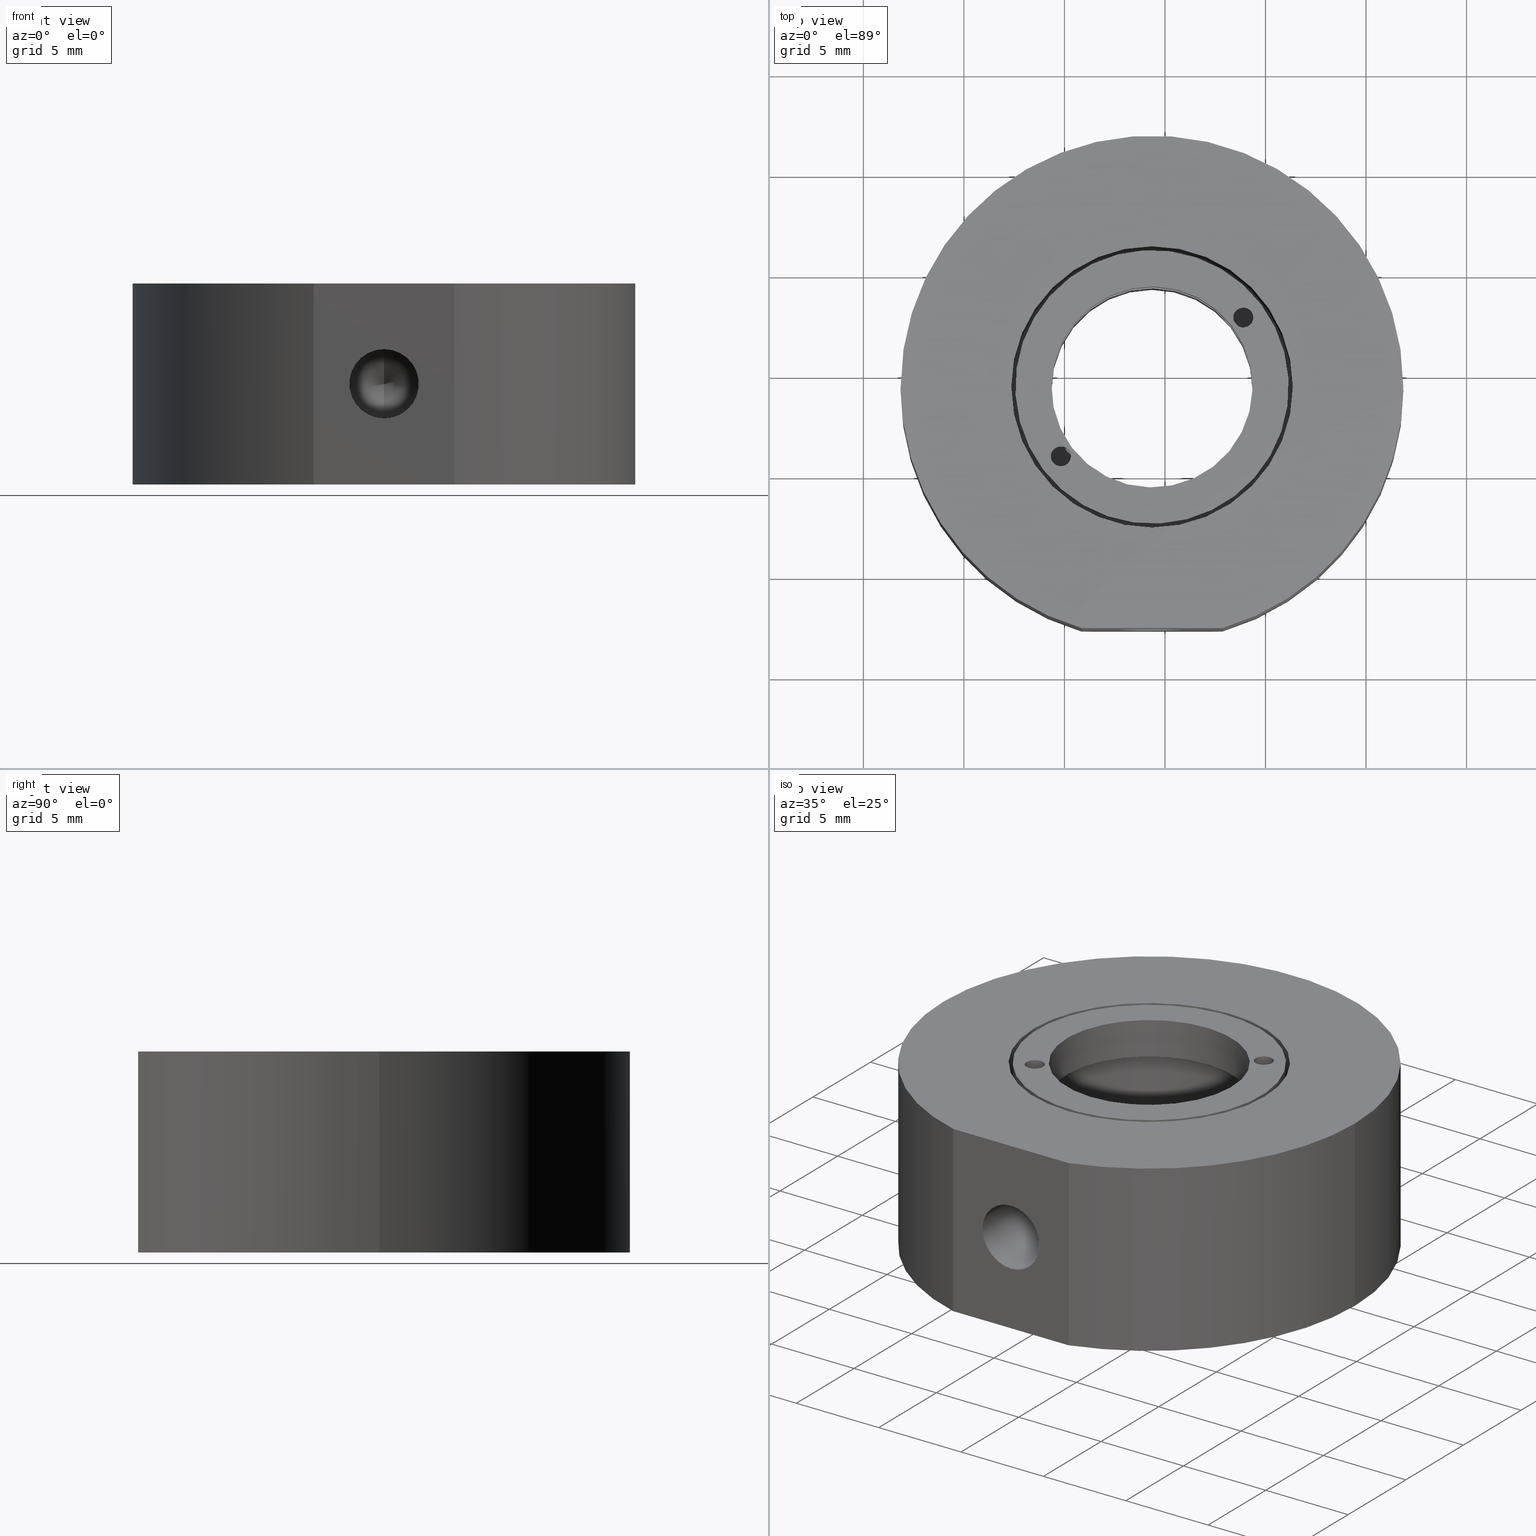
[diagram: canonical four-view strip — front | top / right | iso, engineering-drawing reading convention]
A machine part, canonical four-view strip (front | top / right | iso — engineering-drawing reading convention). The complete STEP part file that produces these views, byte-faithful:
ISO-10303-21;
HEADER;
FILE_DESCRIPTION (( 'STEP AP203' ),
    '1' );
FILE_NAME ('04MTC-0.5.STEP',
    '2016-03-07T02:20:58',
    ( '' ),
    ( '' ),
    'SwSTEP 2.0',
    'SolidWorks 2016',
    '' );
FILE_SCHEMA (( 'CONFIG_CONTROL_DESIGN' ));
ENDSEC;

DATA;
#1 = ORIENTED_EDGE ( 'NONE', *, *, #23, .T. ) ;
#2 = APPROVAL_STATUS ( 'not_yet_approved' ) ;
#3 = VERTEX_POINT ( 'NONE', #114 ) ;
#4 = DIRECTION ( 'NONE',  ( 1.000000000000000000, 0.0000000000000000000, 0.0000000000000000000 ) ) ;
#5 = EDGE_CURVE ( 'NONE', #207, #940, #435, .T. ) ;
#6 = CLOSED_SHELL ( 'NONE', ( #342, #127, #482, #274, #170, #335, #55, #722, #697, #41, #246, #853, #743, #409, #254 ) ) ;
#7 = DIRECTION ( 'NONE',  ( 0.0000000000000000000, 0.0000000000000000000, -1.000000000000000000 ) ) ;
#8 = AXIS2_PLACEMENT_3D ( 'NONE', #528, #685, #609 ) ;
#9 = APPLICATION_PROTOCOL_DEFINITION ( 'international standard', 'config_control_design', 1994, #368 ) ;
#10 = DIRECTION ( 'NONE',  ( 0.0000000000000000000, 0.0000000000000000000, -1.000000000000000000 ) ) ;
#11 = SHAPE_DEFINITION_REPRESENTATION ( #518, #704 ) ;
#12 = VECTOR ( 'NONE', #60, 1000.000000000000000 ) ;
#13 = DIRECTION ( 'NONE',  ( 1.000000000000000000, 0.0000000000000000000, 0.0000000000000000000 ) ) ;
#14 = ORIENTED_EDGE ( 'NONE', *, *, #519, .F. ) ;
#15 = APPROVAL ( #764, 'UNSPECIFIED' ) ;
#16 = UNCERTAINTY_MEASURE_WITH_UNIT (LENGTH_MEASURE( 1.000000000000000100E-005 ), #529, 'distance_accuracy_value', 'NONE');
#17 = DIRECTION ( 'NONE',  ( -0.7959507428775284300, -0.6053613919905288500, 0.0000000000000000000 ) ) ;
#18 = VERTEX_POINT ( 'NONE', #804 ) ;
#19 = CARTESIAN_POINT ( 'NONE',  ( -17.64545028811109300, 4.389876407468494600, -6.499999999999999100 ) ) ;
#20 = DIRECTION ( 'NONE',  ( 0.0000000000000000000, 0.0000000000000000000, 1.000000000000000000 ) ) ;
#22 = AXIS2_PLACEMENT_3D ( 'NONE', #79, #675, #452 ) ;
#21 = APPROVAL_DATE_TIME ( #257, #363 ) ;
#23 = EDGE_CURVE ( 'NONE', #833, #99, #239, .T. ) ;
#24 = CARTESIAN_POINT ( 'NONE',  ( -10.64545028811109300, 4.389876407468493700, -6.499999999999999100 ) ) ;
#25 = CIRCLE ( 'NONE', #447, 0.5000000000000026600 ) ;
#26 = DIRECTION ( 'NONE',  ( 0.9070069596605020400, 0.4211156315400941800, 0.0000000000000000000 ) ) ;
#27 = FACE_OUTER_BOUND ( 'NONE', #767, .T. ) ;
#28 = ORIENTED_EDGE ( 'NONE', *, *, #226, .F. ) ;
#29 = ORIENTED_EDGE ( 'NONE', *, *, #839, .F. ) ;
#30 = AXIS2_PLACEMENT_3D ( 'NONE', #267, #877, #255 ) ;
#31 = VERTEX_POINT ( 'NONE', #264 ) ;
#32 = CARTESIAN_POINT ( 'NONE',  ( -10.64545028811109300, -3.610123592531506300, -2.499999999999999600 ) ) ;
#33 = DIRECTION ( 'NONE',  ( 1.000000000000000000, 0.0000000000000000000, 0.0000000000000000000 ) ) ;
#34 = LOCAL_TIME ( 10, 20, 58.00000000000000000, #469 ) ;
#35 = AXIS2_PLACEMENT_3D ( 'NONE', #260, #865, #33 ) ;
#36 = CARTESIAN_POINT ( 'NONE',  ( -10.64545028811109300, 4.389876407468493700, -6.499999999999999100 ) ) ;
#37 = LINE ( 'NONE', #76, #454 ) ;
#38 = CYLINDRICAL_SURFACE ( 'NONE', #407, 6.250000000000015100 ) ;
#39 = DIRECTION ( 'NONE',  ( -0.7959507428775284300, -0.6053613919905288500, 0.0000000000000000000 ) ) ;
#40 = EDGE_LOOP ( 'NONE', ( #500, #115 ) ) ;
#41 = ADVANCED_FACE ( 'NONE', ( #822 ), #797, .T. ) ;
#42 = DIRECTION ( 'NONE',  ( -0.0000000000000000000, -0.0000000000000000000, -1.000000000000000000 ) ) ;
#43 = EDGE_CURVE ( 'NONE', #742, #241, #410, .T. ) ;
#44 = EDGE_LOOP ( 'NONE', ( #539, #139 ) ) ;
#45 = CARTESIAN_POINT ( 'NONE',  ( -10.64545028811109300, 4.389876407468493700, 2.500000000000000400 ) ) ;
#46 = EDGE_CURVE ( 'NONE', #905, #612, #194, .T. ) ;
#47 = DIRECTION ( 'NONE',  ( 0.0000000000000000000, 0.0000000000000000000, 1.000000000000000000 ) ) ;
#48 = CARTESIAN_POINT ( 'NONE',  ( -5.645450288111092600, 4.389876407468494600, -6.499999999999999100 ) ) ;
#49 = FACE_OUTER_BOUND ( 'NONE', #400, .T. ) ;
#50 = EDGE_LOOP ( 'NONE', ( #513, #487 ) ) ;
#51 = DIRECTION ( 'NONE',  ( 0.0000000000000000000, 0.0000000000000000000, -1.000000000000000000 ) ) ;
#52 = ORIENTED_EDGE ( 'NONE', *, *, #46, .T. ) ;
#53 = EDGE_LOOP ( 'NONE', ( #252, #188 ) ) ;
#54 = CARTESIAN_POINT ( 'NONE',  ( -23.14545028811109600, 4.389876407468493700, 2.500000000000000400 ) ) ;
#55 = ADVANCED_FACE ( 'NONE', ( #168 ), #485, .F. ) ;
#56 = VERTEX_POINT ( 'NONE', #414 ) ;
#57 = AXIS2_PLACEMENT_3D ( 'NONE', #475, #559, #98 ) ;
#58 = DIRECTION ( 'NONE',  ( 0.9070069596605020400, 0.4211156315400941800, 0.0000000000000000000 ) ) ;
#59 = EDGE_CURVE ( 'NONE', #205, #97, #535, .T. ) ;
#60 = DIRECTION ( 'NONE',  ( 1.060575238724906400E-016, -0.5000000000000006700, 0.8660254037844382600 ) ) ;
#61 = LINE ( 'NONE', #779, #432 ) ;
#62 = EDGE_CURVE ( 'NONE', #398, #490, #579, .T. ) ;
#63 = FACE_OUTER_BOUND ( 'NONE', #790, .T. ) ;
#64 = ORIENTED_EDGE ( 'NONE', *, *, #453, .F. ) ;
#65 = EDGE_LOOP ( 'NONE', ( #182, #904 ) ) ;
#66 = DIRECTION ( 'NONE',  ( -0.7959507428775280900, -0.6053613919905294100, 0.0000000000000000000 ) ) ;
#67 = VECTOR ( 'NONE', #51, 1000.000000000000000 ) ;
#68 = CIRCLE ( 'NONE', #253, 5.000000000000000000 ) ;
#69 = DIRECTION ( 'NONE',  ( 0.0000000000000000000, 0.0000000000000000000, 1.000000000000000000 ) ) ;
#70 = AXIS2_PLACEMENT_3D ( 'NONE', #908, #151, #681 ) ;
#71 = ORIENTED_EDGE ( 'NONE', *, *, #657, .T. ) ;
#72 = DIRECTION ( 'NONE',  ( 0.0000000000000000000, 0.0000000000000000000, 1.000000000000000000 ) ) ;
#73 = EDGE_CURVE ( 'NONE', #217, #207, #667, .T. ) ;
#74 = EDGE_LOOP ( 'NONE', ( #844, #823, #339, #567 ) ) ;
#75 = CARTESIAN_POINT ( 'NONE',  ( -10.64545028811109300, 4.389876407468493700, 2.500000000000000400 ) ) ;
#76 = CARTESIAN_POINT ( 'NONE',  ( -14.14545028811109600, -7.610123592531506300, 2.500000000000000400 ) ) ;
#77 = DIRECTION ( 'NONE',  ( -0.0000000000000000000, -0.0000000000000000000, -1.000000000000000000 ) ) ;
#78 = AXIS2_PLACEMENT_3D ( 'NONE', #692, #304, #843 ) ;
#79 = CARTESIAN_POINT ( 'NONE',  ( -6.108531053709175000, 7.840436341814509500, 0.5000000000000004400 ) ) ;
#80 = MECHANICAL_CONTEXT ( 'NONE', #368, 'mechanical' ) ;
#81 = LINE ( 'NONE', #220, #563 ) ;
#82 = DIRECTION ( 'NONE',  ( 0.0000000000000000000, 0.0000000000000000000, 1.000000000000000000 ) ) ;
#83 = CYLINDRICAL_SURFACE ( 'NONE', #517, 12.50000000000000200 ) ;
#84 =( NAMED_UNIT ( * ) PLANE_ANGLE_UNIT ( ) SI_UNIT ( $, .RADIAN. ) );
#85 = ORIENTED_EDGE ( 'NONE', *, *, #896, .F. ) ;
#86 = AXIS2_PLACEMENT_3D ( 'NONE', #240, #20, #17 ) ;
#87 = DIRECTION ( 'NONE',  ( -1.000000000000000000, 0.0000000000000000000, 0.0000000000000000000 ) ) ;
#88 = ORIENTED_EDGE ( 'NONE', *, *, #319, .T. ) ;
#89 = CARTESIAN_POINT ( 'NONE',  ( -16.31424378598923000, 1.757903710342905200, -4.245926263751526300 ) ) ;
#90 = DIRECTION ( 'NONE',  ( 0.0000000000000000000, 0.0000000000000000000, 1.000000000000000000 ) ) ;
#91 = AXIS2_PLACEMENT_3D ( 'NONE', #75, #160, #770 ) ;
#92 = EDGE_CURVE ( 'NONE', #301, #905, #434, .T. ) ;
#93 = COORDINATED_UNIVERSAL_TIME_OFFSET ( 8, 0, .AHEAD. ) ;
#94 = CIRCLE ( 'NONE', #934, 5.000000000000012400 ) ;
#95 = CARTESIAN_POINT ( 'NONE',  ( -10.64545028811109300, 4.389876407468493700, -3.645926263751526600 ) ) ;
#96 = VECTOR ( 'NONE', #375, 1000.000000000000000 ) ;
#97 = VERTEX_POINT ( 'NONE', #198 ) ;
#98 = DIRECTION ( 'NONE',  ( 0.7959507428775283200, 0.6053613919905288500, 0.0000000000000000000 ) ) ;
#99 = VERTEX_POINT ( 'NONE', #869 ) ;
#100 = DIRECTION ( 'NONE',  ( 1.000000000000000000, 0.0000000000000000000, 0.0000000000000000000 ) ) ;
#101 = ORIENTED_EDGE ( 'NONE', *, *, #354, .F. ) ;
#102 = DIRECTION ( 'NONE',  ( -0.0000000000000000000, -1.000000000000000000, -0.0000000000000000000 ) ) ;
#103 = DIRECTION ( 'NONE',  ( 1.000000000000000000, 0.0000000000000000000, -0.0000000000000000000 ) ) ;
#104 = AXIS2_PLACEMENT_3D ( 'NONE', #190, #932, #323 ) ;
#105 = EDGE_CURVE ( 'NONE', #205, #949, #154, .T. ) ;
#106 = CARTESIAN_POINT ( 'NONE',  ( -10.64545028811109300, -7.610123592531506300, -0.7728000000000006000 ) ) ;
#107 = CYLINDRICAL_SURFACE ( 'NONE', #560, 0.5000000000000014400 ) ;
#108 = FACE_BOUND ( 'NONE', #311, .T. ) ;
#109 = ADVANCED_FACE ( 'NONE', ( #597, #108, #973, #320 ), #941, .F. ) ;
#110 = ORIENTED_EDGE ( 'NONE', *, *, #825, .F. ) ;
#111 = DIRECTION ( 'NONE',  ( 0.0000000000000000000, -0.5000000000000006700, -0.8660254037844382600 ) ) ;
#112 = EDGE_LOOP ( 'NONE', ( #283, #776, #71 ) ) ;
#113 = AXIS2_PLACEMENT_3D ( 'NONE', #723, #802, #642 ) ;
#114 = CARTESIAN_POINT ( 'NONE',  ( -5.710555682270410200, 8.143117037809775000, 0.5000000000000004400 ) ) ;
#115 = ORIENTED_EDGE ( 'NONE', *, *, #315, .T. ) ;
#116 = CARTESIAN_POINT ( 'NONE',  ( -15.18236952251302100, 0.9393164731224643600, 0.5000000000000004400 ) ) ;
#117 = CARTESIAN_POINT ( 'NONE',  ( -10.64545028811109400, 4.389876407468493700, 2.500000000000000400 ) ) ;
#118 = DIRECTION ( 'NONE',  ( 0.0000000000000000000, 0.0000000000000000000, -1.000000000000000000 ) ) ;
#119 = LINE ( 'NONE', #562, #607 ) ;
#120 = DIRECTION ( 'NONE',  ( 0.0000000000000000000, -0.0000000000000000000, 1.000000000000000000 ) ) ;
#121 = MANIFOLD_SOLID_BREP ( 'U-F1-04MTC502-DP-1-solid1', #712 ) ;
#122 = ORIENTED_EDGE ( 'NONE', *, *, #131, .F. ) ;
#123 = ORIENTED_EDGE ( 'NONE', *, *, #519, .T. ) ;
#124 = DIRECTION ( 'NONE',  ( -0.9070069596605021500, -0.4211156315400941300, 0.0000000000000000000 ) ) ;
#125 = ORIENTED_EDGE ( 'NONE', *, *, #530, .F. ) ;
#126 = DIRECTION ( 'NONE',  ( 0.0000000000000000000, 0.0000000000000000000, 1.000000000000000000 ) ) ;
#127 = ADVANCED_FACE ( 'NONE', ( #457 ), #739, .F. ) ;
#128 = AXIS2_PLACEMENT_3D ( 'NONE', #862, #942, #489 ) ;
#129 = EDGE_LOOP ( 'NONE', ( #873, #516 ) ) ;
#130 = PLANE ( 'NONE',  #232 ) ;
#131 = EDGE_CURVE ( 'NONE', #212, #31, #588, .T. ) ;
#132 = DIRECTION ( 'NONE',  ( 0.0000000000000000000, 0.0000000000000000000, 1.000000000000000000 ) ) ;
#133 = LINE ( 'NONE', #792, #420 ) ;
#134 = CARTESIAN_POINT ( 'NONE',  ( -14.78439415107425400, 1.241997169117729400, 0.5000000000000004400 ) ) ;
#135 = VECTOR ( 'NONE', #639, 1000.000000000000000 ) ;
#136 = VERTEX_POINT ( 'NONE', #817 ) ;
#137 = VERTEX_POINT ( 'NONE', #514 ) ;
#138 = DIRECTION ( 'NONE',  ( 1.000000000000000000, 0.0000000000000000000, 0.0000000000000000000 ) ) ;
#139 = ORIENTED_EDGE ( 'NONE', *, *, #603, .T. ) ;
#140 = LOCAL_TIME ( 10, 20, 58.00000000000000000, #962 ) ;
#141 = VECTOR ( 'NONE', #126, 1000.000000000000000 ) ;
#142 = AXIS2_PLACEMENT_3D ( 'NONE', #652, #483, #404 ) ;
#143 = CYLINDRICAL_SURFACE ( 'NONE', #719, 12.50000000000000200 ) ;
#144 = VERTEX_POINT ( 'NONE', #275 ) ;
#145 = EDGE_CURVE ( 'NONE', #212, #626, #331, .T. ) ;
#146 = ORIENTED_EDGE ( 'NONE', *, *, #672, .T. ) ;
#147 = ORIENTED_EDGE ( 'NONE', *, *, #197, .T. ) ;
#148 = ORIENTED_EDGE ( 'NONE', *, *, #672, .F. ) ;
#149 = DATE_TIME_ROLE ( 'creation_date' ) ;
#150 = CARTESIAN_POINT ( 'NONE',  ( -15.18048508641361500, 2.284298249768018000, -3.645926263751526600 ) ) ;
#151 = DIRECTION ( 'NONE',  ( 0.0000000000000000000, 0.0000000000000000000, 1.000000000000000000 ) ) ;
#152 = FACE_OUTER_BOUND ( 'NONE', #910, .T. ) ;
#153 = LINE ( 'NONE', #602, #484 ) ;
#154 = CIRCLE ( 'NONE', #943, 0.5000000000000014400 ) ;
#155 = AXIS2_PLACEMENT_3D ( 'NONE', #811, #132, #725 ) ;
#156 = ORIENTED_EDGE ( 'NONE', *, *, #807, .F. ) ;
#157 = DIRECTION ( 'NONE',  ( 1.000000000000000000, 0.0000000000000000000, 0.0000000000000000000 ) ) ;
#158 = EDGE_CURVE ( 'NONE', #814, #730, #383, .T. ) ;
#159 = ORIENTED_EDGE ( 'NONE', *, *, #498, .F. ) ;
#160 = DIRECTION ( 'NONE',  ( -0.0000000000000000000, -0.0000000000000000000, -1.000000000000000000 ) ) ;
#161 = ORIENTED_EDGE ( 'NONE', *, *, #824, .F. ) ;
#162 = CARTESIAN_POINT ( 'NONE',  ( 1.854549711888907600, 4.389876407468495500, 2.500000000000000400 ) ) ;
#163 = EDGE_CURVE ( 'NONE', #3, #56, #687, .T. ) ;
#164 = DIRECTION ( 'NONE',  ( 0.0000000000000000000, 1.000000000000000000, 0.0000000000000000000 ) ) ;
#165 = APPROVAL_PERSON_ORGANIZATION ( #900, #714, #611 ) ;
#166 = LINE ( 'NONE', #582, #141 ) ;
#167 = CARTESIAN_POINT ( 'NONE',  ( -5.232985236543902000, 8.506333873004090100, 2.500000000000000400 ) ) ;
#168 = FACE_OUTER_BOUND ( 'NONE', #572, .T. ) ;
#169 = ORIENTED_EDGE ( 'NONE', *, *, #889, .T. ) ;
#170 = ADVANCED_FACE ( 'NONE', ( #422 ), #143, .T. ) ;
#171 = ORIENTED_EDGE ( 'NONE', *, *, #73, .T. ) ;
#172 = DIRECTION ( 'NONE',  ( 0.0000000000000000000, 0.0000000000000000000, 1.000000000000000000 ) ) ;
#173 = DIRECTION ( 'NONE',  ( 0.0000000000000000000, 0.0000000000000000000, -1.000000000000000000 ) ) ;
#174 = ORIENTED_EDGE ( 'NONE', *, *, #105, .F. ) ;
#175 = DIRECTION ( 'NONE',  ( 0.0000000000000000000, 0.0000000000000000000, 1.000000000000000000 ) ) ;
#176 = AXIS2_PLACEMENT_3D ( 'NONE', #585, #809, #721 ) ;
#177 = EDGE_CURVE ( 'NONE', #137, #360, #180, .T. ) ;
#178 = DIRECTION ( 'NONE',  ( 0.0000000000000000000, 0.0000000000000000000, -1.000000000000000000 ) ) ;
#179 = FACE_OUTER_BOUND ( 'NONE', #713, .T. ) ;
#180 = LINE ( 'NONE', #663, #358 ) ;
#181 = CARTESIAN_POINT ( 'NONE',  ( -10.64545028811109400, 4.389876407468493700, 0.5000000000000004400 ) ) ;
#182 = ORIENTED_EDGE ( 'NONE', *, *, #355, .F. ) ;
#183 = AXIS2_PLACEMENT_3D ( 'NONE', #534, #757, #157 ) ;
#184 = ORIENTED_EDGE ( 'NONE', *, *, #336, .F. ) ;
#185 = CARTESIAN_POINT ( 'NONE',  ( -10.64545028811109300, 4.389876407468493700, 2.500000000000000400 ) ) ;
#186 = CARTESIAN_POINT ( 'NONE',  ( -14.14545028811109600, -7.610123592531506300, -7.500000000000000000 ) ) ;
#187 = ADVANCED_FACE ( 'NONE', ( #945, #750 ), #202, .F. ) ;
#188 = ORIENTED_EDGE ( 'NONE', *, *, #538, .F. ) ;
#189 = DIRECTION ( 'NONE',  ( 0.9070069596605021500, 0.4211156315400941300, 0.0000000000000000000 ) ) ;
#190 = CARTESIAN_POINT ( 'NONE',  ( -10.64545028811109300, 4.389876407468493700, -6.499999999999999100 ) ) ;
#191 = AXIS2_PLACEMENT_3D ( 'NONE', #195, #816, #343 ) ;
#192 = DIRECTION ( 'NONE',  ( 0.0000000000000000000, 0.0000000000000000000, -1.000000000000000000 ) ) ;
#193 = CYLINDRICAL_SURFACE ( 'NONE', #191, 5.000000000000012400 ) ;
#194 = LINE ( 'NONE', #321, #894 ) ;
#195 = CARTESIAN_POINT ( 'NONE',  ( -10.64545028811109300, 4.389876407468493700, -3.645926263751526600 ) ) ;
#196 = ORIENTED_EDGE ( 'NONE', *, *, #390, .T. ) ;
#197 = EDGE_CURVE ( 'NONE', #398, #780, #521, .T. ) ;
#198 = CARTESIAN_POINT ( 'NONE',  ( -14.78439415107425400, 1.241997169117729400, 2.500000000000000400 ) ) ;
#199 = CARTESIAN_POINT ( 'NONE',  ( -15.58034489395178600, 0.6366357771271987700, 0.5000000000000004400 ) ) ;
#200 = DIRECTION ( 'NONE',  ( 0.7959507428775279800, 0.6053613919905293000, 0.0000000000000000000 ) ) ;
#201 = DIRECTION ( 'NONE',  ( 0.7959507428775283200, 0.6053613919905289600, 0.0000000000000000000 ) ) ;
#202 = PLANE ( 'NONE',  #794 ) ;
#203 = VECTOR ( 'NONE', #403, 1000.000000000000000 ) ;
#204 = CIRCLE ( 'NONE', #655, 5.000000000000012400 ) ;
#205 = VERTEX_POINT ( 'NONE', #134 ) ;
#206 = DIRECTION ( 'NONE',  ( 0.0000000000000000000, 0.0000000000000000000, 1.000000000000000000 ) ) ;
#207 = VERTEX_POINT ( 'NONE', #731 ) ;
#208 = CARTESIAN_POINT ( 'NONE',  ( -4.976656790232953900, 7.021849104594082300, -4.245926263751526300 ) ) ;
#209 = AXIS2_PLACEMENT_3D ( 'NONE', #890, #506, #729 ) ;
#210 = ADVANCED_FACE ( 'NONE', ( #63 ), #38, .T. ) ;
#211 = EDGE_CURVE ( 'NONE', #217, #958, #369, .T. ) ;
#212 = VERTEX_POINT ( 'NONE', #952 ) ;
#213 = CARTESIAN_POINT ( 'NONE',  ( -15.64545028811109300, 4.389876407468493700, -7.500000000000000000 ) ) ;
#214 = AXIS2_PLACEMENT_3D ( 'NONE', #185, #573, #258 ) ;
#215 = FACE_OUTER_BOUND ( 'NONE', #458, .T. ) ;
#216 = FACE_OUTER_BOUND ( 'NONE', #661, .T. ) ;
#217 = VERTEX_POINT ( 'NONE', #893 ) ;
#218 = VERTEX_POINT ( 'NONE', #213 ) ;
#219 = DIRECTION ( 'NONE',  ( -0.7959507428775284300, -0.6053613919905287400, 0.0000000000000000000 ) ) ;
#220 = CARTESIAN_POINT ( 'NONE',  ( -15.64545028811109300, 4.389876407468493700, 2.500000000000000400 ) ) ;
#221 = FACE_OUTER_BOUND ( 'NONE', #44, .T. ) ;
#222 = APPROVAL_ROLE ( '' ) ;
#223 = PRODUCT_DEFINITION_FORMATION_WITH_SPECIFIED_SOURCE ( 'ANY', '', #353, .NOT_KNOWN. ) ;
#224 = LINE ( 'NONE', #150, #96 ) ;
#225 = CARTESIAN_POINT ( 'NONE',  ( -10.64545028811109300, -3.610123592531506300, -2.499999999999999600 ) ) ;
#226 = EDGE_CURVE ( 'NONE', #218, #612, #551, .T. ) ;
#227 = CARTESIAN_POINT ( 'NONE',  ( -16.31424378598924500, 1.757903710342898900, -3.645926263751526600 ) ) ;
#228 = EDGE_LOOP ( 'NONE', ( #161, #537, #763 ) ) ;
#229 = VERTEX_POINT ( 'NONE', #666 ) ;
#230 = CARTESIAN_POINT ( 'NONE',  ( -6.665696573723443500, 7.416683367421145900, 2.500000000000000400 ) ) ;
#231 = DIRECTION ( 'NONE',  ( -0.7959507428775284300, -0.6053613919905287400, 0.0000000000000000000 ) ) ;
#232 = AXIS2_PLACEMENT_3D ( 'NONE', #425, #164, #616 ) ;
#233 = PERSON_AND_ORGANIZATION_ROLE ( 'creator' ) ;
#234 = EDGE_LOOP ( 'NONE', ( #159, #752, #800, #413 ) ) ;
#235 = DIRECTION ( 'NONE',  ( 0.0000000000000000000, 0.0000000000000000000, -1.000000000000000000 ) ) ;
#236 = FACE_OUTER_BOUND ( 'NONE', #74, .T. ) ;
#237 = APPROVAL_STATUS ( 'not_yet_approved' ) ;
#238 = AXIS2_PLACEMENT_3D ( 'NONE', #341, #120, #266 ) ;
#239 = CIRCLE ( 'NONE', #744, 6.250000000000015100 ) ;
#240 = CARTESIAN_POINT ( 'NONE',  ( -10.64545028811109400, 4.389876407468493700, 0.5000000000000004400 ) ) ;
#241 = VERTEX_POINT ( 'NONE', #445 ) ;
#242 = DIRECTION ( 'NONE',  ( 0.0000000000000000000, 0.0000000000000000000, 1.000000000000000000 ) ) ;
#243 = EDGE_CURVE ( 'NONE', #18, #490, #762, .T. ) ;
#244 = DIRECTION ( 'NONE',  ( 1.000000000000000000, 0.0000000000000000000, 0.0000000000000000000 ) ) ;
#245 = CARTESIAN_POINT ( 'NONE',  ( -15.18236952251302100, 0.9393164731224643600, 0.5000000000000004400 ) ) ;
#246 = ADVANCED_FACE ( 'NONE', ( #299, #280 ), #130, .F. ) ;
#247 = CARTESIAN_POINT ( 'NONE',  ( -10.64545028811109300, 4.389876407468493700, -6.499999999999999100 ) ) ;
#248 = VECTOR ( 'NONE', #832, 1000.000000000000000 ) ;
#249 = EDGE_LOOP ( 'NONE', ( #624, #424, #669, #326 ) ) ;
#250 = ORIENTED_EDGE ( 'NONE', *, *, #62, .F. ) ;
#251 = DIRECTION ( 'NONE',  ( 1.000000000000000000, 0.0000000000000000000, -0.0000000000000000000 ) ) ;
#252 = ORIENTED_EDGE ( 'NONE', *, *, #333, .F. ) ;
#253 = AXIS2_PLACEMENT_3D ( 'NONE', #24, #546, #307 ) ;
#254 = ADVANCED_FACE ( 'NONE', ( #346 ), #957, .F. ) ;
#255 = DIRECTION ( 'NONE',  ( 1.000000000000000000, 0.0000000000000000000, 0.0000000000000000000 ) ) ;
#256 = EDGE_CURVE ( 'NONE', #636, #144, #867, .T. ) ;
#257 = DATE_AND_TIME ( #747, #140 ) ;
#258 = DIRECTION ( 'NONE',  ( -1.000000000000000000, 0.0000000000000000000, 0.0000000000000000000 ) ) ;
#259 = CONICAL_SURFACE ( 'NONE', #964, 1.727199999999999000, 1.047197551196597000 ) ;
#260 = CARTESIAN_POINT ( 'NONE',  ( -10.64545028811109300, 4.389876407468493700, 2.500000000000000400 ) ) ;
#261 = ORIENTED_EDGE ( 'NONE', *, *, #411, .F. ) ;
#262 = AXIS2_PLACEMENT_3D ( 'NONE', #36, #492, #569 ) ;
#263 = EDGE_LOOP ( 'NONE', ( #703, #169, #314, #148 ) ) ;
#264 = CARTESIAN_POINT ( 'NONE',  ( -23.14545028811109600, 4.389876407468493700, -7.500000000000000000 ) ) ;
#265 = VERTEX_POINT ( 'NONE', #758 ) ;
#266 = DIRECTION ( 'NONE',  ( 0.9070069596605021500, 0.4211156315400941800, 0.0000000000000000000 ) ) ;
#267 = CARTESIAN_POINT ( 'NONE',  ( -10.64545028811109300, 4.389876407468493700, -7.500000000000000000 ) ) ;
#268 = FACE_OUTER_BOUND ( 'NONE', #881, .T. ) ;
#269 = CIRCLE ( 'NONE', #350, 12.50000000000000000 ) ;
#270 = ORIENTED_EDGE ( 'NONE', *, *, #570, .T. ) ;
#271 = ORIENTED_EDGE ( 'NONE', *, *, #937, .T. ) ;
#272 = ORIENTED_EDGE ( 'NONE', *, *, #256, .T. ) ;
#273 = CC_DESIGN_DATE_AND_TIME_ASSIGNMENT ( #392, #912, ( #868 ) ) ;
#274 = ADVANCED_FACE ( 'NONE', ( #27 ), #83, .T. ) ;
#275 = CARTESIAN_POINT ( 'NONE',  ( -16.05791533967828500, 0.2734189419328972300, 2.500000000000000400 ) ) ;
#276 = MANIFOLD_SOLID_BREP ( 'U-F1-04MTC5E1-D2-1-solid1', #6 ) ;
#277 = DIRECTION ( 'NONE',  ( 0.0000000000000000000, 0.0000000000000000000, 1.000000000000000000 ) ) ;
#278 = EDGE_CURVE ( 'NONE', #136, #97, #710, .T. ) ;
#279 = FACE_OUTER_BOUND ( 'NONE', #112, .T. ) ;
#280 = FACE_OUTER_BOUND ( 'NONE', #939, .T. ) ;
#281 = ORIENTED_EDGE ( 'NONE', *, *, #315, .F. ) ;
#282 = CARTESIAN_POINT ( 'NONE',  ( -10.64545028811109300, 4.389876407468493700, -4.245926263751526300 ) ) ;
#283 = ORIENTED_EDGE ( 'NONE', *, *, #158, .F. ) ;
#285 = AXIS2_PLACEMENT_3D ( 'NONE', #32, #872, #576 ) ;
#284 = DATE_AND_TIME ( #480, #771 ) ;
#286 = ORIENTED_EDGE ( 'NONE', *, *, #402, .T. ) ;
#287 = EDGE_LOOP ( 'NONE', ( #438, #427 ) ) ;
#288 = CARTESIAN_POINT ( 'NONE',  ( -6.506506425147940800, 7.537755645819245000, 0.5000000000000004400 ) ) ;
#289 = ORIENTED_EDGE ( 'NONE', *, *, #43, .T. ) ;
#290 = CARTESIAN_POINT ( 'NONE',  ( -6.108531053709175000, 7.840436341814509500, 2.500000000000000400 ) ) ;
#291 = DIRECTION ( 'NONE',  ( 0.0000000000000000000, 0.0000000000000000000, -1.000000000000000000 ) ) ;
#292 = DIRECTION ( 'NONE',  ( 0.0000000000000000000, 0.0000000000000000000, 1.000000000000000000 ) ) ;
#293 = DIRECTION ( 'NONE',  ( 0.0000000000000000000, 0.0000000000000000000, 1.000000000000000000 ) ) ;
#294 = DIRECTION ( 'NONE',  ( 0.0000000000000000000, 0.0000000000000000000, 1.000000000000000000 ) ) ;
#295 = CYLINDRICAL_SURFACE ( 'NONE', #155, 0.5000000000000021100 ) ;
#296 = CC_DESIGN_PERSON_AND_ORGANIZATION_ASSIGNMENT ( #595, #830, ( #353 ) ) ;
#297 = CIRCLE ( 'NONE', #700, 7.000000000000000000 ) ;
#298 = CARTESIAN_POINT ( 'NONE',  ( -10.64545028811109400, 4.389876407468493700, 2.500000000000000400 ) ) ;
#299 = FACE_BOUND ( 'NONE', #688, .T. ) ;
#300 = DIRECTION ( 'NONE',  ( 0.0000000000000000000, 0.0000000000000000000, 1.000000000000000000 ) ) ;
#301 = VERTEX_POINT ( 'NONE', #689 ) ;
#302 = ORIENTED_EDGE ( 'NONE', *, *, #736, .T. ) ;
#303 = CARTESIAN_POINT ( 'NONE',  ( -10.64545028811109300, 4.389876407468493700, -7.500000000000000000 ) ) ;
#304 = DIRECTION ( 'NONE',  ( -0.0000000000000000000, -1.000000000000000000, -0.0000000000000000000 ) ) ;
#305 = EDGE_CURVE ( 'NONE', #949, #205, #842, .T. ) ;
#306 = ORIENTED_EDGE ( 'NONE', *, *, #657, .F. ) ;
#307 = DIRECTION ( 'NONE',  ( 1.000000000000000000, 0.0000000000000000000, 0.0000000000000000000 ) ) ;
#308 = FACE_BOUND ( 'NONE', #129, .T. ) ;
#309 = DIRECTION ( 'NONE',  ( -0.0000000000000000000, -1.000000000000000000, -0.0000000000000000000 ) ) ;
#310 = CYLINDRICAL_SURFACE ( 'NONE', #665, 6.800000000000017600 ) ;
#311 = EDGE_LOOP ( 'NONE', ( #429, #523 ) ) ;
#312 = ORIENTED_EDGE ( 'NONE', *, *, #211, .T. ) ;
#313 = CARTESIAN_POINT ( 'NONE',  ( -5.645450288111092600, 4.389876407468494600, -7.500000000000000000 ) ) ;
#314 = ORIENTED_EDGE ( 'NONE', *, *, #453, .T. ) ;
#315 = EDGE_CURVE ( 'NONE', #612, #218, #821, .T. ) ;
#316 = FACE_OUTER_BOUND ( 'NONE', #263, .T. ) ;
#317 = CARTESIAN_POINT ( 'NONE',  ( -10.64545028811109300, -3.610123592531506300, -4.227199999999999000 ) ) ;
#318 = CYLINDRICAL_SURFACE ( 'NONE', #78, 1.727199999999999000 ) ;
#319 = EDGE_CURVE ( 'NONE', #99, #691, #915, .T. ) ;
#320 = FACE_BOUND ( 'NONE', #633, .T. ) ;
#321 = CARTESIAN_POINT ( 'NONE',  ( -5.645450288111092600, 4.389876407468494600, 2.500000000000000400 ) ) ;
#322 = ORIENTED_EDGE ( 'NONE', *, *, #530, .T. ) ;
#323 = DIRECTION ( 'NONE',  ( 1.000000000000000000, 0.0000000000000000000, -0.0000000000000000000 ) ) ;
#324 = ORIENTED_EDGE ( 'NONE', *, *, #589, .T. ) ;
#325 = DIRECTION ( 'NONE',  ( -0.9070069596605020400, -0.4211156315400941300, 0.0000000000000000000 ) ) ;
#326 = ORIENTED_EDGE ( 'NONE', *, *, #835, .F. ) ;
#327 = AXIS2_PLACEMENT_3D ( 'NONE', #181, #571, #39 ) ;
#328 = DIRECTION ( 'NONE',  ( -0.0000000000000000000, -0.0000000000000000000, -1.000000000000000000 ) ) ;
#329 = LOCAL_TIME ( 10, 20, 58.00000000000000000, #864 ) ;
#330 = FACE_OUTER_BOUND ( 'NONE', #845, .T. ) ;
#331 = CIRCLE ( 'NONE', #707, 12.50000000000000000 ) ;
#332 = ORIENTED_EDGE ( 'NONE', *, *, #464, .T. ) ;
#333 = EDGE_CURVE ( 'NONE', #691, #855, #644, .T. ) ;
#334 = ORIENTED_EDGE ( 'NONE', *, *, #464, .F. ) ;
#335 = ADVANCED_FACE ( 'NONE', ( #216 ), #866, .F. ) ;
#336 = EDGE_CURVE ( 'NONE', #958, #940, #511, .T. ) ;
#337 = ORIENTED_EDGE ( 'NONE', *, *, #145, .T. ) ;
#338 = DIRECTION ( 'NONE',  ( 0.0000000000000000000, 0.0000000000000000000, 1.000000000000000000 ) ) ;
#339 = ORIENTED_EDGE ( 'NONE', *, *, #875, .T. ) ;
#340 = CARTESIAN_POINT ( 'NONE',  ( -10.64545028811109300, 4.389876407468493700, -3.645926263751526600 ) ) ;
#341 = CARTESIAN_POINT ( 'NONE',  ( -10.64545028811109300, 4.389876407468493700, -3.645926263751526600 ) ) ;
#342 = ADVANCED_FACE ( 'NONE', ( #935 ), #318, .F. ) ;
#343 = DIRECTION ( 'NONE',  ( -0.9070069596605020400, -0.4211156315400941300, 0.0000000000000000000 ) ) ;
#344 = FACE_OUTER_BOUND ( 'NONE', #359, .T. ) ;
#345 = CIRCLE ( 'NONE', #956, 6.800000000000017600 ) ;
#346 = FACE_OUTER_BOUND ( 'NONE', #504, .T. ) ;
#347 = CARTESIAN_POINT ( 'NONE',  ( -6.665696573723453300, 7.416683367421138800, 2.500000000000000400 ) ) ;
#348 = EDGE_LOOP ( 'NONE', ( #960, #1 ) ) ;
#349 = ORIENTED_EDGE ( 'NONE', *, *, #278, .F. ) ;
#350 = AXIS2_PLACEMENT_3D ( 'NONE', #303, #841, #13 ) ;
#351 = DIRECTION ( 'NONE',  ( 1.000000000000000000, 0.0000000000000000000, 0.0000000000000000000 ) ) ;
#352 = ORIENTED_EDGE ( 'NONE', *, *, #411, .T. ) ;
#353 = PRODUCT ( '04MTC-0.5', '04MTC-0.5', '', ( #80 ) ) ;
#354 = EDGE_CURVE ( 'NONE', #940, #31, #737, .T. ) ;
#355 = EDGE_CURVE ( 'NONE', #870, #137, #587, .T. ) ;
#356 = PERSON_AND_ORGANIZATION ( #433, #654 ) ;
#357 = LINE ( 'NONE', #186, #203 ) ;
#358 = VECTOR ( 'NONE', #886, 1000.000000000000000 ) ;
#359 = EDGE_LOOP ( 'NONE', ( #250, #147, #322, #29 ) ) ;
#360 = VERTEX_POINT ( 'NONE', #450 ) ;
#361 = ORIENTED_EDGE ( 'NONE', *, *, #755, .T. ) ;
#362 = DIRECTION ( 'NONE',  ( 0.0000000000000000000, -0.0000000000000000000, 1.000000000000000000 ) ) ;
#363 = APPROVAL ( #237, 'UNSPECIFIED' ) ;
#364 = DIRECTION ( 'NONE',  ( 0.9070069596605021500, 0.4211156315400941300, 0.0000000000000000000 ) ) ;
#365 = CIRCLE ( 'NONE', #86, 5.000000000000012400 ) ;
#366 = EDGE_CURVE ( 'NONE', #144, #241, #61, .T. ) ;
#367 = FACE_BOUND ( 'NONE', #50, .T. ) ;
#368 = APPLICATION_CONTEXT ( 'configuration controlled 3d designs of mechanical parts and assemblies' ) ;
#369 = CIRCLE ( 'NONE', #641, 12.50000000000000000 ) ;
#370 = EDGE_LOOP ( 'NONE', ( #565, #554, #352, #635 ) ) ;
#371 = CARTESIAN_POINT ( 'NONE',  ( -6.108531053709175000, 7.840436341814509500, 0.5000000000000004400 ) ) ;
#372 = ORIENTED_EDGE ( 'NONE', *, *, #788, .F. ) ;
#373 = AXIS2_PLACEMENT_3D ( 'NONE', #766, #293, #364 ) ;
#374 = PERSON_AND_ORGANIZATION_ROLE ( 'classification_officer' ) ;
#375 = DIRECTION ( 'NONE',  ( 0.0000000000000000000, 0.0000000000000000000, -1.000000000000000000 ) ) ;
#376 = DIRECTION ( 'NONE',  ( -0.0000000000000000000, -1.000000000000000000, -0.0000000000000000000 ) ) ;
#377 = DIRECTION ( 'NONE',  ( -0.0000000000000000000, -0.0000000000000000000, 1.000000000000000000 ) ) ;
#378 = CARTESIAN_POINT ( 'NONE',  ( -10.64545028811109300, 4.389876407468493700, -7.500000000000000000 ) ) ;
#379 = DIRECTION ( 'NONE',  ( 1.000000000000000000, 0.0000000000000000000, 0.0000000000000000000 ) ) ;
#380 = AXIS2_PLACEMENT_3D ( 'NONE', #921, #10, #325 ) ;
#381 = CIRCLE ( 'NONE', #437, 5.000000000000012400 ) ;
#382 = CARTESIAN_POINT ( 'NONE',  ( -10.64545028811109300, -7.610123592531506300, -2.499999999999999600 ) ) ;
#383 = LINE ( 'NONE', #593, #12 ) ;
#384 = DIRECTION ( 'NONE',  ( 1.000000000000000000, 0.0000000000000000000, 0.0000000000000000000 ) ) ;
#385 = ORIENTED_EDGE ( 'NONE', *, *, #131, .T. ) ;
#386 = VERTEX_POINT ( 'NONE', #19 ) ;
#387 = CARTESIAN_POINT ( 'NONE',  ( -10.64545028811109300, -7.610123592531506300, -2.499999999999999600 ) ) ;
#388 = DIRECTION ( 'NONE',  ( 0.0000000000000000000, 0.0000000000000000000, -1.000000000000000000 ) ) ;
#389 = ADVANCED_FACE ( 'NONE', ( #367, #509, #179, #608 ), #628, .T. ) ;
#390 = EDGE_CURVE ( 'NONE', #780, #398, #204, .T. ) ;
#391 = DIRECTION ( 'NONE',  ( -0.0000000000000000000, -1.000000000000000000, -0.0000000000000000000 ) ) ;
#392 = DATE_AND_TIME ( #819, #329 ) ;
#393 = LINE ( 'NONE', #317, #470 ) ;
#394 = CARTESIAN_POINT ( 'NONE',  ( -5.710555682270408400, 8.143117037809776800, 0.5000000000000004400 ) ) ;
#395 = CYLINDRICAL_SURFACE ( 'NONE', #57, 6.800000000000017600 ) ;
#396 = VECTOR ( 'NONE', #564, 1000.000000000000000 ) ;
#397 = DIRECTION ( 'NONE',  ( -0.0000000000000000000, -1.000000000000000000, -0.0000000000000000000 ) ) ;
#398 = VERTEX_POINT ( 'NONE', #781 ) ;
#399 = ORIENTED_EDGE ( 'NONE', *, *, #354, .T. ) ;
#400 = EDGE_LOOP ( 'NONE', ( #558, #726, #660, #448 ) ) ;
#401 = DIRECTION ( 'NONE',  ( -0.0000000000000000000, -0.0000000000000000000, -1.000000000000000000 ) ) ;
#402 = EDGE_CURVE ( 'NONE', #476, #727, #810, .T. ) ;
#403 = DIRECTION ( 'NONE',  ( 1.000000000000000000, 0.0000000000000000000, 0.0000000000000000000 ) ) ;
#404 = DIRECTION ( 'NONE',  ( -0.7959507428775284300, -0.6053613919905288500, 0.0000000000000000000 ) ) ;
#405 = CARTESIAN_POINT ( 'NONE',  ( -10.64545028811109400, -2.612924207587184400, -2.499999999999999600 ) ) ;
#406 = CIRCLE ( 'NONE', #70, 6.800000000000017600 ) ;
#407 = AXIS2_PLACEMENT_3D ( 'NONE', #340, #959, #124 ) ;
#408 = VECTOR ( 'NONE', #734, 1000.000000000000000 ) ;
#409 = ADVANCED_FACE ( 'NONE', ( #279 ), #259, .F. ) ;
#410 = CIRCLE ( 'NONE', #113, 6.800000000000017600 ) ;
#411 = EDGE_CURVE ( 'NONE', #778, #229, #297, .T. ) ;
#412 = PLANE ( 'NONE',  #786 ) ;
#413 = ORIENTED_EDGE ( 'NONE', *, *, #736, .F. ) ;
#414 = CARTESIAN_POINT ( 'NONE',  ( -6.506506425147939900, 7.537755645819245800, 0.5000000000000004400 ) ) ;
#415 = CARTESIAN_POINT ( 'NONE',  ( -10.64545028811109300, 4.389876407468493700, -6.499999999999999100 ) ) ;
#416 = ADVANCED_FACE ( 'NONE', ( #236 ), #107, .F. ) ;
#417 = CARTESIAN_POINT ( 'NONE',  ( 1.854549711888907600, 4.389876407468495500, 2.500000000000000400 ) ) ;
#418 = APPROVAL_PERSON_ORGANIZATION ( #356, #363, #222 ) ;
#419 = CARTESIAN_POINT ( 'NONE',  ( -10.64545028811109300, 4.389876407468493700, 2.500000000000000400 ) ) ;
#420 = VECTOR ( 'NONE', #479, 1000.000000000000000 ) ;
#421 = CARTESIAN_POINT ( 'NONE',  ( -10.64545028811109300, 4.389876407468493700, -4.245926263751526300 ) ) ;
#422 = FACE_OUTER_BOUND ( 'NONE', #671, .T. ) ;
#423 = CC_DESIGN_SECURITY_CLASSIFICATION ( #868, ( #223 ) ) ;
#424 = ORIENTED_EDGE ( 'NONE', *, *, #366, .T. ) ;
#425 = CARTESIAN_POINT ( 'NONE',  ( -14.14545028811109600, -7.610123592531506300, 2.500000000000000400 ) ) ;
#426 = EDGE_CURVE ( 'NONE', #241, #742, #345, .T. ) ;
#427 = ORIENTED_EDGE ( 'NONE', *, *, #839, .T. ) ;
#428 = CARTESIAN_POINT ( 'NONE',  ( -10.64545028811109300, 4.389876407468493700, 2.500000000000000400 ) ) ;
#429 = ORIENTED_EDGE ( 'NONE', *, *, #305, .T. ) ;
#430 = DIRECTION ( 'NONE',  ( 0.9070069596605021500, 0.4211156315400941800, 0.0000000000000000000 ) ) ;
#431 = COORDINATED_UNIVERSAL_TIME_OFFSET ( 8, 0, .AHEAD. ) ;
#432 = VECTOR ( 'NONE', #173, 1000.000000000000000 ) ;
#433 = PERSON ( 'UNSPECIFIED', 'UNSPECIFIED', 'UNSPECIFIED', ('UNSPECIFIED'), ('UNSPECIFIED'), ('UNSPECIFIED') ) ;
#434 = CIRCLE ( 'NONE', #262, 5.000000000000000000 ) ;
#435 = CIRCLE ( 'NONE', #30, 12.50000000000000000 ) ;
#436 = ORIENTED_EDGE ( 'NONE', *, *, #197, .F. ) ;
#437 = AXIS2_PLACEMENT_3D ( 'NONE', #421, #884, #510 ) ;
#438 = ORIENTED_EDGE ( 'NONE', *, *, #243, .T. ) ;
#439 = AXIS2_PLACEMENT_3D ( 'NONE', #882, #507, #58 ) ;
#440 = EDGE_CURVE ( 'NONE', #3, #476, #761, .T. ) ;
#441 = PERSON_AND_ORGANIZATION ( #433, #654 ) ;
#442 = FACE_BOUND ( 'NONE', #522, .T. ) ;
#443 = FACE_OUTER_BOUND ( 'NONE', #370, .T. ) ;
#444 = ORIENTED_EDGE ( 'NONE', *, *, #702, .F. ) ;
#445 = CARTESIAN_POINT ( 'NONE',  ( -16.05791533967828500, 0.2734189419328972300, 0.5000000000000004400 ) ) ;
#446 = ORIENTED_EDGE ( 'NONE', *, *, #440, .F. ) ;
#447 = AXIS2_PLACEMENT_3D ( 'NONE', #371, #673, #527 ) ;
#448 = ORIENTED_EDGE ( 'NONE', *, *, #319, .F. ) ;
#449 = CARTESIAN_POINT ( 'NONE',  ( -10.64545028811109400, 4.389876407468493700, 0.5000000000000004400 ) ) ;
#450 = CARTESIAN_POINT ( 'NONE',  ( -14.62520400249873700, 1.363069447515849600, 0.5000000000000004400 ) ) ;
#451 = DIRECTION ( 'NONE',  ( 1.000000000000000000, 0.0000000000000000000, 0.0000000000000000000 ) ) ;
#452 = DIRECTION ( 'NONE',  ( -0.7959507428775288700, -0.6053613919905281900, 0.0000000000000000000 ) ) ;
#453 = EDGE_CURVE ( 'NONE', #870, #799, #840, .T. ) ;
#454 = VECTOR ( 'NONE', #4, 1000.000000000000000 ) ;
#455 = CARTESIAN_POINT ( 'NONE',  ( -10.64545028811109300, -7.610123592531506300, -2.499999999999999600 ) ) ;
#456 =( NAMED_UNIT ( * ) SI_UNIT ( $, .STERADIAN. ) SOLID_ANGLE_UNIT ( ) );
#457 = FACE_OUTER_BOUND ( 'NONE', #228, .T. ) ;
#458 = EDGE_LOOP ( 'NONE', ( #812, #871, #156, #64 ) ) ;
#459 = DIRECTION ( 'NONE',  ( 0.0000000000000000000, 0.0000000000000000000, -1.000000000000000000 ) ) ;
#460 = ORIENTED_EDGE ( 'NONE', *, *, #637, .T. ) ;
#461 = DIRECTION ( 'NONE',  ( 0.0000000000000000000, 0.0000000000000000000, 1.000000000000000000 ) ) ;
#462 = AXIS2_PLACEMENT_3D ( 'NONE', #679, #536, #231 ) ;
#463 = PERSON_AND_ORGANIZATION_ROLE ( 'creator' ) ;
#464 = EDGE_CURVE ( 'NONE', #626, #217, #37, .T. ) ;
#465 = DIRECTION ( 'NONE',  ( 0.0000000000000000000, 0.0000000000000000000, -1.000000000000000000 ) ) ;
#466 = ORIENTED_EDGE ( 'NONE', *, *, #481, .T. ) ;
#467 = CARTESIAN_POINT ( 'NONE',  ( -6.108531053709175000, 7.840436341814509500, 2.500000000000000400 ) ) ;
#468 = DIRECTION ( 'NONE',  ( 0.0000000000000000000, 0.0000000000000000000, 1.000000000000000000 ) ) ;
#469 = COORDINATED_UNIVERSAL_TIME_OFFSET ( 8, 0, .AHEAD. ) ;
#470 = VECTOR ( 'NONE', #111, 1000.000000000000000 ) ;
#471 = LINE ( 'NONE', #769, #596 ) ;
#472 = DIRECTION ( 'NONE',  ( 0.7959507428775279800, 0.6053613919905293000, 0.0000000000000000000 ) ) ;
#473 = ORIENTED_EDGE ( 'NONE', *, *, #43, .F. ) ;
#474 = ORIENTED_EDGE ( 'NONE', *, *, #163, .T. ) ;
#475 = CARTESIAN_POINT ( 'NONE',  ( -10.64545028811109400, 4.389876407468493700, 2.500000000000000400 ) ) ;
#476 = VERTEX_POINT ( 'NONE', #619 ) ;
#477 = CC_DESIGN_PERSON_AND_ORGANIZATION_ASSIGNMENT ( #441, #233, ( #223 ) ) ;
#478 = EDGE_CURVE ( 'NONE', #56, #3, #25, .T. ) ;
#479 = DIRECTION ( 'NONE',  ( -0.0000000000000000000, -1.000000000000000000, -0.0000000000000000000 ) ) ;
#481 = EDGE_CURVE ( 'NONE', #97, #136, #902, .T. ) ;
#480 = CALENDAR_DATE ( 2016, 7, 3 ) ;
#482 = ADVANCED_FACE ( 'NONE', ( #443 ), #820, .F. ) ;
#483 = DIRECTION ( 'NONE',  ( 0.0000000000000000000, 0.0000000000000000000, 1.000000000000000000 ) ) ;
#484 = VECTOR ( 'NONE', #754, 1000.000000000000000 ) ;
#485 = CYLINDRICAL_SURFACE ( 'NONE', #214, 4.999999999999999100 ) ;
#486 = EDGE_LOOP ( 'NONE', ( #174, #793, #466, #751 ) ) ;
#487 = ORIENTED_EDGE ( 'NONE', *, *, #402, .F. ) ;
#488 = CARTESIAN_POINT ( 'NONE',  ( -14.78439415107425400, 1.241997169117729800, 0.5000000000000004400 ) ) ;
#489 = DIRECTION ( 'NONE',  ( 1.000000000000000000, 0.0000000000000000000, 0.0000000000000000000 ) ) ;
#490 = VERTEX_POINT ( 'NONE', #968 ) ;
#491 = AXIS2_PLACEMENT_3D ( 'NONE', #415, #658, #955 ) ;
#492 = DIRECTION ( 'NONE',  ( 0.0000000000000000000, 0.0000000000000000000, 1.000000000000000000 ) ) ;
#493 = CARTESIAN_POINT ( 'NONE',  ( -10.64545028811109300, 4.389876407468493700, 2.500000000000000400 ) ) ;
#494 = CALENDAR_DATE ( 2016, 7, 3 ) ;
#495 = CIRCLE ( 'NONE', #848, 0.5000000000000026600 ) ;
#496 = FACE_OUTER_BOUND ( 'NONE', #249, .T. ) ;
#497 = ORIENTED_EDGE ( 'NONE', *, *, #966, .T. ) ;
#498 = EDGE_CURVE ( 'NONE', #730, #515, #643, .T. ) ;
#499 = PLANE ( 'NONE',  #238 ) ;
#500 = ORIENTED_EDGE ( 'NONE', *, *, #226, .T. ) ;
#501 = ADVANCED_FACE ( 'NONE', ( #954 ), #914, .F. ) ;
#502 = ORIENTED_EDGE ( 'NONE', *, *, #481, .F. ) ;
#503 = CARTESIAN_POINT ( 'NONE',  ( -10.64545028811109300, 4.389876407468493700, -3.645926263751526600 ) ) ;
#504 = EDGE_LOOP ( 'NONE', ( #444, #306, #302, #645 ) ) ;
#505 = AXIS2_PLACEMENT_3D ( 'NONE', #540, #72, #903 ) ;
#506 = DIRECTION ( 'NONE',  ( 0.0000000000000000000, 0.0000000000000000000, -1.000000000000000000 ) ) ;
#507 = DIRECTION ( 'NONE',  ( 0.0000000000000000000, 0.0000000000000000000, 1.000000000000000000 ) ) ;
#508 = CYLINDRICAL_SURFACE ( 'NONE', #209, 6.250000000000015100 ) ;
#509 = FACE_BOUND ( 'NONE', #699, .T. ) ;
#510 = DIRECTION ( 'NONE',  ( 0.9070069596605020400, 0.4211156315400941800, 0.0000000000000000000 ) ) ;
#511 = LINE ( 'NONE', #162, #775 ) ;
#512 = PRODUCT_DEFINITION ( 'UNKNOWN', '', #223, #690 ) ;
#513 = ORIENTED_EDGE ( 'NONE', *, *, #966, .F. ) ;
#514 = CARTESIAN_POINT ( 'NONE',  ( -14.62520400249873700, 1.363069447515849600, 2.500000000000000400 ) ) ;
#515 = VERTEX_POINT ( 'NONE', #606 ) ;
#516 = ORIENTED_EDGE ( 'NONE', *, *, #589, .F. ) ;
#517 = AXIS2_PLACEMENT_3D ( 'NONE', #544, #836, #87 ) ;
#518 = PRODUCT_DEFINITION_SHAPE ( 'NONE', 'NONE',  #512 ) ;
#519 = EDGE_CURVE ( 'NONE', #301, #218, #81, .T. ) ;
#520 = PERSON_AND_ORGANIZATION ( #433, #654 ) ;
#521 = CIRCLE ( 'NONE', #439, 5.000000000000012400 ) ;
#522 = EDGE_LOOP ( 'NONE', ( #580, #436 ) ) ;
#523 = ORIENTED_EDGE ( 'NONE', *, *, #105, .T. ) ;
#524 = DIRECTION ( 'NONE',  ( -0.0000000000000000000, -1.000000000000000000, -0.0000000000000000000 ) ) ;
#525 = EDGE_LOOP ( 'NONE', ( #312, #271, #337, #332 ) ) ;
#526 = ORIENTED_EDGE ( 'NONE', *, *, #478, .T. ) ;
#527 = DIRECTION ( 'NONE',  ( 0.7959507428775279800, 0.6053613919905293000, 0.0000000000000000000 ) ) ;
#528 = CARTESIAN_POINT ( 'NONE',  ( -10.64545028811109300, 4.389876407468493700, -4.245926263751526300 ) ) ;
#529 =( LENGTH_UNIT ( ) NAMED_UNIT ( * ) SI_UNIT ( .MILLI., .METRE. ) );
#530 = EDGE_CURVE ( 'NONE', #780, #18, #224, .T. ) ;
#531 = DIRECTION ( 'NONE',  ( 0.9070069596605021500, 0.4211156315400941300, 0.0000000000000000000 ) ) ;
#532 = LINE ( 'NONE', #106, #852 ) ;
#533 = VECTOR ( 'NONE', #90, 1000.000000000000000 ) ;
#534 = CARTESIAN_POINT ( 'NONE',  ( -10.64545028811109300, 4.389876407468493700, -6.499999999999999100 ) ) ;
#535 = LINE ( 'NONE', #488, #396 ) ;
#536 = DIRECTION ( 'NONE',  ( 0.0000000000000000000, 0.0000000000000000000, 1.000000000000000000 ) ) ;
#537 = ORIENTED_EDGE ( 'NONE', *, *, #158, .T. ) ;
#538 = EDGE_CURVE ( 'NONE', #855, #691, #785, .T. ) ;
#539 = ORIENTED_EDGE ( 'NONE', *, *, #825, .T. ) ;
#540 = CARTESIAN_POINT ( 'NONE',  ( -15.18236952251302100, 0.9393164731224643600, 2.500000000000000400 ) ) ;
#541 = DIRECTION ( 'NONE',  ( 0.0000000000000000000, 0.0000000000000000000, 1.000000000000000000 ) ) ;
#542 = APPROVAL_ROLE ( '' ) ;
#543 = DIRECTION ( 'NONE',  ( 0.7959507428775283200, 0.6053613919905288500, 0.0000000000000000000 ) ) ;
#544 = CARTESIAN_POINT ( 'NONE',  ( -10.64545028811109300, 4.389876407468493700, 2.500000000000000400 ) ) ;
#545 = AXIS2_PLACEMENT_3D ( 'NONE', #503, #650, #887 ) ;
#546 = DIRECTION ( 'NONE',  ( 0.0000000000000000000, 0.0000000000000000000, 1.000000000000000000 ) ) ;
#547 = LOCAL_TIME ( 10, 20, 58.00000000000000000, #93 ) ;
#548 = FACE_OUTER_BOUND ( 'NONE', #348, .T. ) ;
#549 = CARTESIAN_POINT ( 'NONE',  ( -10.64545028811109400, 4.389876407468493700, 2.500000000000000400 ) ) ;
#550 = ADVANCED_FACE ( 'NONE', ( #684 ), #972, .F. ) ;
#551 = CIRCLE ( 'NONE', #760, 5.000000000000000000 ) ;
#552 = ORIENTED_EDGE ( 'NONE', *, *, #145, .F. ) ;
#553 = CARTESIAN_POINT ( 'NONE',  ( -14.14545028811109800, -7.610123592531504500, 2.500000000000000400 ) ) ;
#554 = ORIENTED_EDGE ( 'NONE', *, *, #627, .T. ) ;
#555 = CARTESIAN_POINT ( 'NONE',  ( -10.64545028811109300, -3.610123592531506300, -2.499999999999999600 ) ) ;
#556 = ORIENTED_EDGE ( 'NONE', *, *, #333, .T. ) ;
#557 = EDGE_CURVE ( 'NONE', #638, #229, #153, .T. ) ;
#558 = ORIENTED_EDGE ( 'NONE', *, *, #23, .F. ) ;
#559 = DIRECTION ( 'NONE',  ( 0.0000000000000000000, 0.0000000000000000000, -1.000000000000000000 ) ) ;
#560 = AXIS2_PLACEMENT_3D ( 'NONE', #245, #632, #705 ) ;
#561 = CIRCLE ( 'NONE', #128, 7.000000000000000000 ) ;
#562 = CARTESIAN_POINT ( 'NONE',  ( -14.14545028811109800, -7.610123592531504500, 2.500000000000000400 ) ) ;
#563 = VECTOR ( 'NONE', #678, 1000.000000000000000 ) ;
#564 = DIRECTION ( 'NONE',  ( 0.0000000000000000000, 0.0000000000000000000, 1.000000000000000000 ) ) ;
#565 = ORIENTED_EDGE ( 'NONE', *, *, #603, .F. ) ;
#566 = DIRECTION ( 'NONE',  ( 0.7959507428775283200, 0.6053613919905289600, 0.0000000000000000000 ) ) ;
#567 = ORIENTED_EDGE ( 'NONE', *, *, #278, .T. ) ;
#568 = CC_DESIGN_PERSON_AND_ORGANIZATION_ASSIGNMENT ( #808, #463, ( #512 ) ) ;
#569 = DIRECTION ( 'NONE',  ( 1.000000000000000000, 0.0000000000000000000, 0.0000000000000000000 ) ) ;
#570 = EDGE_CURVE ( 'NONE', #144, #636, #406, .T. ) ;
#571 = DIRECTION ( 'NONE',  ( 0.0000000000000000000, 0.0000000000000000000, 1.000000000000000000 ) ) ;
#572 = EDGE_LOOP ( 'NONE', ( #967, #324, #123, #281 ) ) ;
#573 = DIRECTION ( 'NONE',  ( -0.0000000000000000000, -0.0000000000000000000, -1.000000000000000000 ) ) ;
#574 = DIRECTION ( 'NONE',  ( 0.0000000000000000000, 0.0000000000000000000, 1.000000000000000000 ) ) ;
#575 = AXIS2_PLACEMENT_3D ( 'NONE', #614, #294, #623 ) ;
#576 = DIRECTION ( 'NONE',  ( 0.0000000000000000000, 0.0000000000000000000, -1.000000000000000000 ) ) ;
#577 = CYLINDRICAL_SURFACE ( 'NONE', #491, 7.000000000000000000 ) ;
#578 = EDGE_CURVE ( 'NONE', #56, #727, #698, .T. ) ;
#579 = LINE ( 'NONE', #863, #936 ) ;
#580 = ORIENTED_EDGE ( 'NONE', *, *, #390, .F. ) ;
#581 = DIRECTION ( 'NONE',  ( -0.7959507428775280900, -0.6053613919905294100, 0.0000000000000000000 ) ) ;
#582 = CARTESIAN_POINT ( 'NONE',  ( -15.58034489395178600, 0.6366357771271987700, 0.5000000000000004400 ) ) ;
#583 = MANIFOLD_SOLID_BREP ( 'U-F1-04MTC503-D3-1-solid1', #883 ) ;
#584 = CARTESIAN_POINT ( 'NONE',  ( 0.0000000000000000000, 0.0000000000000000000, 0.0000000000000000000 ) ) ;
#585 = CARTESIAN_POINT ( 'NONE',  ( -10.64545028811109300, 4.389876407468493700, 2.500000000000000400 ) ) ;
#586 = ADVANCED_FACE ( 'NONE', ( #620 ), #310, .T. ) ;
#587 = CIRCLE ( 'NONE', #924, 5.000000000000012400 ) ;
#588 = LINE ( 'NONE', #54, #408 ) ;
#589 = EDGE_CURVE ( 'NONE', #905, #301, #68, .T. ) ;
#590 = ORIENTED_EDGE ( 'NONE', *, *, #835, .T. ) ;
#591 = ORIENTED_EDGE ( 'NONE', *, *, #92, .T. ) ;
#592 = ADVANCED_FACE ( 'NONE', ( #496 ), #395, .T. ) ;
#593 = CARTESIAN_POINT ( 'NONE',  ( -10.64545028811109300, -3.610123592531506300, -0.7728000000000010400 ) ) ;
#594 = EDGE_CURVE ( 'NONE', #265, #895, #879, .T. ) ;
#595 = PERSON_AND_ORGANIZATION ( #433, #654 ) ;
#596 = VECTOR ( 'NONE', #377, 1000.000000000000000 ) ;
#597 = FACE_BOUND ( 'NONE', #857, .T. ) ;
#598 = ORIENTED_EDGE ( 'NONE', *, *, #777, .T. ) ;
#599 = ORIENTED_EDGE ( 'NONE', *, *, #336, .T. ) ;
#600 = ORIENTED_EDGE ( 'NONE', *, *, #163, .F. ) ;
#601 = AXIS2_PLACEMENT_3D ( 'NONE', #851, #468, #783 ) ;
#602 = CARTESIAN_POINT ( 'NONE',  ( -3.645450288111093100, 4.389876407468493700, -6.499999999999999100 ) ) ;
#603 = EDGE_CURVE ( 'NONE', #386, #638, #854, .T. ) ;
#604 = APPLICATION_CONTEXT ( 'configuration controlled 3d designs of mechanical parts and assemblies' ) ;
#605 = DATE_AND_TIME ( #494, #34 ) ;
#606 = CARTESIAN_POINT ( 'NONE',  ( -10.64545028811109300, -3.610123592531506300, -4.227199999999999000 ) ) ;
#607 = VECTOR ( 'NONE', #42, 1000.000000000000000 ) ;
#608 = FACE_BOUND ( 'NONE', #65, .T. ) ;
#609 = DIRECTION ( 'NONE',  ( 0.9070069596605020400, 0.4211156315400941800, 0.0000000000000000000 ) ) ;
#610 = AXIS2_PLACEMENT_3D ( 'NONE', #225, #524, #826 ) ;
#611 = APPROVAL_ROLE ( '' ) ;
#612 = VERTEX_POINT ( 'NONE', #313 ) ;
#613 = ORIENTED_EDGE ( 'NONE', *, *, #627, .F. ) ;
#614 = CARTESIAN_POINT ( 'NONE',  ( -15.18236952251302100, 0.9393164731224643600, 2.500000000000000400 ) ) ;
#615 = SECURITY_CLASSIFICATION_LEVEL ( 'unclassified' ) ;
#616 = DIRECTION ( 'NONE',  ( 0.0000000000000000000, -0.0000000000000000000, 1.000000000000000000 ) ) ;
#617 = APPLICATION_PROTOCOL_DEFINITION ( 'international standard', 'config_control_design', 1994, #604 ) ;
#618 = CC_DESIGN_DATE_AND_TIME_ASSIGNMENT ( #695, #149, ( #512 ) ) ;
#619 = CARTESIAN_POINT ( 'NONE',  ( -5.710555682270410200, 8.143117037809775000, 2.500000000000000400 ) ) ;
#620 = FACE_OUTER_BOUND ( 'NONE', #765, .T. ) ;
#621 = CARTESIAN_POINT ( 'NONE',  ( -3.645450288111093100, 4.389876407468493700, -6.499999999999999100 ) ) ;
#622 = VECTOR ( 'NONE', #235, 1000.000000000000000 ) ;
#623 = DIRECTION ( 'NONE',  ( -0.7959507428775280900, -0.6053613919905294100, 0.0000000000000000000 ) ) ;
#624 = ORIENTED_EDGE ( 'NONE', *, *, #570, .F. ) ;
#625 = AXIS2_PLACEMENT_3D ( 'NONE', #969, #292, #774 ) ;
#626 = VERTEX_POINT ( 'NONE', #553 ) ;
#627 = EDGE_CURVE ( 'NONE', #386, #778, #471, .T. ) ;
#628 = PLANE ( 'NONE',  #601 ) ;
#629 = EDGE_LOOP ( 'NONE', ( #372, #261 ) ) ;
#630 = DIRECTION ( 'NONE',  ( 0.0000000000000000000, 0.0000000000000000000, 1.000000000000000000 ) ) ;
#631 = APPROVAL_PERSON_ORGANIZATION ( #827, #15, #542 ) ;
#632 = DIRECTION ( 'NONE',  ( 0.0000000000000000000, 0.0000000000000000000, 1.000000000000000000 ) ) ;
#633 = EDGE_LOOP ( 'NONE', ( #651, #146 ) ) ;
#634 = CARTESIAN_POINT ( 'NONE',  ( -10.64545028811109300, -3.610123592531506300, -0.7728000000000010400 ) ) ;
#635 = ORIENTED_EDGE ( 'NONE', *, *, #557, .F. ) ;
#636 = VERTEX_POINT ( 'NONE', #167 ) ;
#637 = EDGE_CURVE ( 'NONE', #31, #918, #269, .T. ) ;
#638 = VERTEX_POINT ( 'NONE', #621 ) ;
#639 = DIRECTION ( 'NONE',  ( -0.0000000000000000000, -0.0000000000000000000, -1.000000000000000000 ) ) ;
#640 = PLANE ( 'NONE',  #104 ) ;
#641 = AXIS2_PLACEMENT_3D ( 'NONE', #419, #961, #138 ) ;
#642 = DIRECTION ( 'NONE',  ( -0.7959507428775284300, -0.6053613919905287400, 0.0000000000000000000 ) ) ;
#643 = CIRCLE ( 'NONE', #610, 1.727199999999999000 ) ;
#644 = CIRCLE ( 'NONE', #662, 6.250000000000015100 ) ;
#645 = ORIENTED_EDGE ( 'NONE', *, *, #594, .T. ) ;
#646 = CARTESIAN_POINT ( 'NONE',  ( -5.232985236543902000, 8.506333873004090100, 0.5000000000000004400 ) ) ;
#647 = ORIENTED_EDGE ( 'NONE', *, *, #594, .F. ) ;
#648 = CC_DESIGN_PERSON_AND_ORGANIZATION_ASSIGNMENT ( #520, #756, ( #223 ) ) ;
#649 = DIRECTION ( 'NONE',  ( 0.0000000000000000000, 0.0000000000000000000, 1.000000000000000000 ) ) ;
#650 = DIRECTION ( 'NONE',  ( 0.0000000000000000000, 0.0000000000000000000, 1.000000000000000000 ) ) ;
#651 = ORIENTED_EDGE ( 'NONE', *, *, #807, .T. ) ;
#652 = CARTESIAN_POINT ( 'NONE',  ( -10.64545028811109400, 4.389876407468493700, 0.5000000000000004400 ) ) ;
#653 = CARTESIAN_POINT ( 'NONE',  ( 1.854549711888907600, 4.389876407468495500, -7.500000000000000000 ) ) ;
#655 = AXIS2_PLACEMENT_3D ( 'NONE', #95, #242, #26 ) ;
#654 = ORGANIZATION ( 'UNSPECIFIED', 'UNSPECIFIED', '' ) ;
#656 = CARTESIAN_POINT ( 'NONE',  ( -6.108531053709175000, 7.840436341814509500, 0.5000000000000004400 ) ) ;
#657 = EDGE_CURVE ( 'NONE', #515, #730, #901, .T. ) ;
#658 = DIRECTION ( 'NONE',  ( -0.0000000000000000000, -0.0000000000000000000, 1.000000000000000000 ) ) ;
#659 = ORIENTED_EDGE ( 'NONE', *, *, #777, .F. ) ;
#660 = ORIENTED_EDGE ( 'NONE', *, *, #538, .T. ) ;
#661 = EDGE_LOOP ( 'NONE', ( #591, #52, #28, #14 ) ) ;
#662 = AXIS2_PLACEMENT_3D ( 'NONE', #847, #300, #531 ) ;
#663 = CARTESIAN_POINT ( 'NONE',  ( -14.62520400249874600, 1.363069447515841800, 2.500000000000000400 ) ) ;
#664 = CARTESIAN_POINT ( 'NONE',  ( -10.64545028811109400, 4.389876407468493700, 2.500000000000000400 ) ) ;
#665 = AXIS2_PLACEMENT_3D ( 'NONE', #298, #828, #543 ) ;
#666 = CARTESIAN_POINT ( 'NONE',  ( -3.645450288111093100, 4.389876407468493700, 2.500000000000000400 ) ) ;
#667 = LINE ( 'NONE', #716, #135 ) ;
#668 = EDGE_LOOP ( 'NONE', ( #473, #859 ) ) ;
#669 = ORIENTED_EDGE ( 'NONE', *, *, #426, .T. ) ;
#670 = AXIS2_PLACEMENT_3D ( 'NONE', #919, #541, #384 ) ;
#671 = EDGE_LOOP ( 'NONE', ( #552, #385, #460, #746 ) ) ;
#672 = EDGE_CURVE ( 'NONE', #360, #799, #365, .T. ) ;
#673 = DIRECTION ( 'NONE',  ( 0.0000000000000000000, 0.0000000000000000000, 1.000000000000000000 ) ) ;
#674 = CIRCLE ( 'NONE', #545, 6.250000000000015100 ) ;
#675 = DIRECTION ( 'NONE',  ( 0.0000000000000000000, 0.0000000000000000000, 1.000000000000000000 ) ) ;
#676 = ORIENTED_EDGE ( 'NONE', *, *, #909, .F. ) ;
#677 = ORIENTED_EDGE ( 'NONE', *, *, #5, .F. ) ;
#678 = DIRECTION ( 'NONE',  ( -0.0000000000000000000, -0.0000000000000000000, -1.000000000000000000 ) ) ;
#679 = CARTESIAN_POINT ( 'NONE',  ( -10.64545028811109400, 4.389876407468493700, 2.500000000000000400 ) ) ;
#680 = PRODUCT_RELATED_PRODUCT_CATEGORY ( 'detail', '', ( #353 ) ) ;
#681 = DIRECTION ( 'NONE',  ( -0.7959507428775284300, -0.6053613919905287400, 0.0000000000000000000 ) ) ;
#682 = EDGE_CURVE ( 'NONE', #895, #265, #749, .T. ) ;
#683 = CALENDAR_DATE ( 2016, 7, 3 ) ;
#684 = FACE_OUTER_BOUND ( 'NONE', #486, .T. ) ;
#685 = DIRECTION ( 'NONE',  ( 0.0000000000000000000, 0.0000000000000000000, 1.000000000000000000 ) ) ;
#686 = AXIS2_PLACEMENT_3D ( 'NONE', #467, #858, #472 ) ;
#687 = CIRCLE ( 'NONE', #911, 0.5000000000000026600 ) ;
#688 = EDGE_LOOP ( 'NONE', ( #647, #787 ) ) ;
#689 = CARTESIAN_POINT ( 'NONE',  ( -15.64545028811109300, 4.389876407468493700, -6.499999999999999100 ) ) ;
#690 = DESIGN_CONTEXT ( 'detailed design', #604, 'design' ) ;
#691 = VERTEX_POINT ( 'NONE', #89 ) ;
#692 = CARTESIAN_POINT ( 'NONE',  ( -10.64545028811109300, -7.610123592531506300, -2.499999999999999600 ) ) ;
#693 = AXIS2_PLACEMENT_3D ( 'NONE', #584, #338, #379 ) ;
#694 = CARTESIAN_POINT ( 'NONE',  ( -10.64545028811109300, 4.389876407468493700, -7.500000000000000000 ) ) ;
#695 = DATE_AND_TIME ( #683, #547 ) ;
#696 = CIRCLE ( 'NONE', #176, 12.50000000000000000 ) ;
#697 = ADVANCED_FACE ( 'NONE', ( #330, #878 ), #846, .F. ) ;
#698 = LINE ( 'NONE', #288, #248 ) ;
#699 = EDGE_LOOP ( 'NONE', ( #349, #502 ) ) ;
#700 = AXIS2_PLACEMENT_3D ( 'NONE', #930, #175, #100 ) ;
#701 = ORIENTED_EDGE ( 'NONE', *, *, #637, .F. ) ;
#702 = EDGE_CURVE ( 'NONE', #730, #895, #532, .T. ) ;
#703 = ORIENTED_EDGE ( 'NONE', *, *, #177, .F. ) ;
#704 = ADVANCED_BREP_SHAPE_REPRESENTATION ( '04MTC-0.5', ( #276, #121, #583, #693 ), #768 ) ;
#705 = DIRECTION ( 'NONE',  ( -0.7959507428775280900, -0.6053613919905294100, 0.0000000000000000000 ) ) ;
#706 = ORIENTED_EDGE ( 'NONE', *, *, #557, .T. ) ;
#707 = AXIS2_PLACEMENT_3D ( 'NONE', #741, #206, #351 ) ;
#708 = CARTESIAN_POINT ( 'NONE',  ( -6.506506425147939900, 7.537755645819245800, 2.500000000000000400 ) ) ;
#709 = FACE_OUTER_BOUND ( 'NONE', #897, .T. ) ;
#710 = CIRCLE ( 'NONE', #575, 0.5000000000000014400 ) ;
#711 = CARTESIAN_POINT ( 'NONE',  ( -17.64545028811109300, 4.389876407468494600, 2.500000000000000400 ) ) ;
#712 = CLOSED_SHELL ( 'NONE', ( #715, #891, #938, #187, #210, #850 ) ) ;
#713 = EDGE_LOOP ( 'NONE', ( #272, #270 ) ) ;
#714 = APPROVAL ( #2, 'UNSPECIFIED' ) ;
#715 = ADVANCED_FACE ( 'NONE', ( #152 ), #759, .F. ) ;
#716 = CARTESIAN_POINT ( 'NONE',  ( -7.145450288111090000, -7.610123592531506300, 2.500000000000000400 ) ) ;
#717 = CARTESIAN_POINT ( 'NONE',  ( -15.18048508641360300, 2.284298249768023300, -3.645926263751526600 ) ) ;
#718 = ORIENTED_EDGE ( 'NONE', *, *, #366, .F. ) ;
#719 = AXIS2_PLACEMENT_3D ( 'NONE', #428, #829, #815 ) ;
#720 = DIRECTION ( 'NONE',  ( -1.000000000000000000, 0.0000000000000000000, 0.0000000000000000000 ) ) ;
#721 = DIRECTION ( 'NONE',  ( 1.000000000000000000, 0.0000000000000000000, 0.0000000000000000000 ) ) ;
#722 = ADVANCED_FACE ( 'NONE', ( #784, #735 ), #412, .T. ) ;
#723 = CARTESIAN_POINT ( 'NONE',  ( -10.64545028811109400, 4.389876407468493700, 0.5000000000000004400 ) ) ;
#724 = ORIENTED_EDGE ( 'NONE', *, *, #73, .F. ) ;
#725 = DIRECTION ( 'NONE',  ( -0.7959507428775288700, -0.6053613919905281900, 0.0000000000000000000 ) ) ;
#726 = ORIENTED_EDGE ( 'NONE', *, *, #909, .T. ) ;
#727 = VERTEX_POINT ( 'NONE', #708 ) ;
#728 = DIRECTION ( 'NONE',  ( 1.000000000000000000, 0.0000000000000000000, 0.0000000000000000000 ) ) ;
#729 = DIRECTION ( 'NONE',  ( -0.9070069596605021500, -0.4211156315400941300, 0.0000000000000000000 ) ) ;
#730 = VERTEX_POINT ( 'NONE', #634 ) ;
#731 = CARTESIAN_POINT ( 'NONE',  ( -7.145450288111090000, -7.610123592531506300, -7.500000000000000000 ) ) ;
#732 = CARTESIAN_POINT ( 'NONE',  ( -14.14545028811109800, -7.610123592531504500, -7.500000000000000000 ) ) ;
#733 = AXIS2_PLACEMENT_3D ( 'NONE', #382, #391, #465 ) ;
#734 = DIRECTION ( 'NONE',  ( -0.0000000000000000000, -0.0000000000000000000, -1.000000000000000000 ) ) ;
#735 = FACE_OUTER_BOUND ( 'NONE', #525, .T. ) ;
#736 = EDGE_CURVE ( 'NONE', #515, #265, #133, .T. ) ;
#737 = CIRCLE ( 'NONE', #874, 12.50000000000000000 ) ;
#738 = DIRECTION ( 'NONE',  ( -0.7959507428775284300, -0.6053613919905288500, 0.0000000000000000000 ) ) ;
#739 = CONICAL_SURFACE ( 'NONE', #285, 1.727199999999999000, 1.047197551196597000 ) ;
#740 = ORIENTED_EDGE ( 'NONE', *, *, #440, .T. ) ;
#741 = CARTESIAN_POINT ( 'NONE',  ( -10.64545028811109300, 4.389876407468493700, 2.500000000000000400 ) ) ;
#742 = VERTEX_POINT ( 'NONE', #646 ) ;
#743 = ADVANCED_FACE ( 'NONE', ( #308, #221 ), #640, .T. ) ;
#744 = AXIS2_PLACEMENT_3D ( 'NONE', #795, #791, #189 ) ;
#745 = CARTESIAN_POINT ( 'NONE',  ( -10.64545028811109300, 4.389876407468493700, -7.500000000000000000 ) ) ;
#746 = ORIENTED_EDGE ( 'NONE', *, *, #755, .F. ) ;
#747 = CALENDAR_DATE ( 2016, 7, 3 ) ;
#748 = AXIS2_PLACEMENT_3D ( 'NONE', #694, #172, #251 ) ;
#749 = CIRCLE ( 'NONE', #733, 1.727199999999999800 ) ;
#750 = FACE_BOUND ( 'NONE', #287, .T. ) ;
#751 = ORIENTED_EDGE ( 'NONE', *, *, #875, .F. ) ;
#752 = ORIENTED_EDGE ( 'NONE', *, *, #702, .T. ) ;
#753 = AXIS2_PLACEMENT_3D ( 'NONE', #387, #102, #459 ) ;
#754 = DIRECTION ( 'NONE',  ( -0.0000000000000000000, -0.0000000000000000000, 1.000000000000000000 ) ) ;
#755 = EDGE_CURVE ( 'NONE', #626, #918, #119, .T. ) ;
#756 = PERSON_AND_ORGANIZATION_ROLE ( 'design_supplier' ) ;
#757 = DIRECTION ( 'NONE',  ( -0.0000000000000000000, -0.0000000000000000000, 1.000000000000000000 ) ) ;
#758 = CARTESIAN_POINT ( 'NONE',  ( -10.64545028811109300, -7.610123592531506300, -4.227199999999999800 ) ) ;
#760 = AXIS2_PLACEMENT_3D ( 'NONE', #745, #47, #728 ) ;
#759 = CYLINDRICAL_SURFACE ( 'NONE', #380, 5.000000000000012400 ) ;
#761 = LINE ( 'NONE', #394, #533 ) ;
#762 = CIRCLE ( 'NONE', #8, 5.000000000000012400 ) ;
#763 = ORIENTED_EDGE ( 'NONE', *, *, #498, .T. ) ;
#764 = APPROVAL_STATUS ( 'not_yet_approved' ) ;
#765 = EDGE_LOOP ( 'NONE', ( #718, #947, #590, #289 ) ) ;
#766 = CARTESIAN_POINT ( 'NONE',  ( -10.64545028811109300, 4.389876407468493700, -4.245926263751526300 ) ) ;
#767 = EDGE_LOOP ( 'NONE', ( #803, #599, #399, #122 ) ) ;
#768 =( GEOMETRIC_REPRESENTATION_CONTEXT ( 3 ) GLOBAL_UNCERTAINTY_ASSIGNED_CONTEXT ( ( #16 ) ) GLOBAL_UNIT_ASSIGNED_CONTEXT ( ( #529, #84, #456 ) ) REPRESENTATION_CONTEXT ( 'NONE', 'WORKASPACE' ) );
#769 = CARTESIAN_POINT ( 'NONE',  ( -17.64545028811109300, 4.389876407468494600, -6.499999999999999100 ) ) ;
#770 = DIRECTION ( 'NONE',  ( -1.000000000000000000, 0.0000000000000000000, 0.0000000000000000000 ) ) ;
#771 = LOCAL_TIME ( 10, 20, 58.00000000000000000, #431 ) ;
#772 = ADVANCED_FACE ( 'NONE', ( #316 ), #963, .F. ) ;
#773 = LINE ( 'NONE', #944, #933 ) ;
#774 = DIRECTION ( 'NONE',  ( -0.7959507428775280900, -0.6053613919905294100, 0.0000000000000000000 ) ) ;
#775 = VECTOR ( 'NONE', #77, 1000.000000000000000 ) ;
#776 = ORIENTED_EDGE ( 'NONE', *, *, #824, .T. ) ;
#777 = EDGE_CURVE ( 'NONE', #918, #207, #357, .T. ) ;
#778 = VERTEX_POINT ( 'NONE', #711 ) ;
#779 = CARTESIAN_POINT ( 'NONE',  ( -16.05791533967829900, 0.2734189419328876800, 2.500000000000000400 ) ) ;
#780 = VERTEX_POINT ( 'NONE', #717 ) ;
#781 = CARTESIAN_POINT ( 'NONE',  ( -6.110415489808582700, 6.495454565168964600, -3.645926263751526600 ) ) ;
#782 = DIRECTION ( 'NONE',  ( 0.0000000000000000000, 0.0000000000000000000, 1.000000000000000000 ) ) ;
#783 = DIRECTION ( 'NONE',  ( -0.7959507428775284300, -0.6053613919905288500, 0.0000000000000000000 ) ) ;
#784 = FACE_BOUND ( 'NONE', #629, .T. ) ;
#785 = CIRCLE ( 'NONE', #373, 6.250000000000015100 ) ;
#786 = AXIS2_PLACEMENT_3D ( 'NONE', #493, #574, #103 ) ;
#787 = ORIENTED_EDGE ( 'NONE', *, *, #682, .F. ) ;
#788 = EDGE_CURVE ( 'NONE', #229, #778, #970, .T. ) ;
#789 = CARTESIAN_POINT ( 'NONE',  ( -10.64545028811109400, 4.389876407468493700, 2.500000000000000400 ) ) ;
#790 = EDGE_LOOP ( 'NONE', ( #676, #85, #88, #556 ) ) ;
#791 = DIRECTION ( 'NONE',  ( 0.0000000000000000000, 0.0000000000000000000, 1.000000000000000000 ) ) ;
#792 = CARTESIAN_POINT ( 'NONE',  ( -10.64545028811109300, -7.610123592531506300, -4.227199999999999000 ) ) ;
#793 = ORIENTED_EDGE ( 'NONE', *, *, #59, .T. ) ;
#794 = AXIS2_PLACEMENT_3D ( 'NONE', #282, #362, #430 ) ;
#795 = CARTESIAN_POINT ( 'NONE',  ( -10.64545028811109300, 4.389876407468493700, -3.645926263751526600 ) ) ;
#796 = CIRCLE ( 'NONE', #327, 5.000000000000012400 ) ;
#797 = CYLINDRICAL_SURFACE ( 'NONE', #861, 12.50000000000000200 ) ;
#798 = CARTESIAN_POINT ( 'NONE',  ( -6.665696573723453300, 7.416683367421138800, 0.5000000000000004400 ) ) ;
#799 = VERTEX_POINT ( 'NONE', #798 ) ;
#800 = ORIENTED_EDGE ( 'NONE', *, *, #682, .T. ) ;
#801 = CC_DESIGN_APPROVAL ( #363, ( #512 ) ) ;
#802 = DIRECTION ( 'NONE',  ( 0.0000000000000000000, 0.0000000000000000000, 1.000000000000000000 ) ) ;
#803 = ORIENTED_EDGE ( 'NONE', *, *, #937, .F. ) ;
#804 = CARTESIAN_POINT ( 'NONE',  ( -15.18048508641360300, 2.284298249768023300, -4.245926263751526300 ) ) ;
#805 = CARTESIAN_POINT ( 'NONE',  ( -10.64545028811109300, -7.610123592531506300, -0.7727999999999997100 ) ) ;
#806 = AXIS2_PLACEMENT_3D ( 'NONE', #856, #928, #849 ) ;
#807 = EDGE_CURVE ( 'NONE', #799, #360, #796, .T. ) ;
#808 = PERSON_AND_ORGANIZATION ( #433, #654 ) ;
#809 = DIRECTION ( 'NONE',  ( 0.0000000000000000000, 0.0000000000000000000, 1.000000000000000000 ) ) ;
#810 = CIRCLE ( 'NONE', #686, 0.5000000000000026600 ) ;
#811 = CARTESIAN_POINT ( 'NONE',  ( -6.108531053709175000, 7.840436341814509500, 0.5000000000000004400 ) ) ;
#812 = ORIENTED_EDGE ( 'NONE', *, *, #355, .T. ) ;
#813 = AXIS2_PLACEMENT_3D ( 'NONE', #455, #376, #7 ) ;
#814 = VERTEX_POINT ( 'NONE', #405 ) ;
#815 = DIRECTION ( 'NONE',  ( -1.000000000000000000, 0.0000000000000000000, 0.0000000000000000000 ) ) ;
#816 = DIRECTION ( 'NONE',  ( 0.0000000000000000000, 0.0000000000000000000, -1.000000000000000000 ) ) ;
#817 = CARTESIAN_POINT ( 'NONE',  ( -15.58034489395178600, 0.6366357771271987700, 2.500000000000000400 ) ) ;
#818 = CC_DESIGN_APPROVAL ( #714, ( #223 ) ) ;
#819 = CALENDAR_DATE ( 2016, 7, 3 ) ;
#820 = CYLINDRICAL_SURFACE ( 'NONE', #183, 7.000000000000000000 ) ;
#821 = CIRCLE ( 'NONE', #670, 5.000000000000000000 ) ;
#822 = FACE_OUTER_BOUND ( 'NONE', #831, .T. ) ;
#823 = ORIENTED_EDGE ( 'NONE', *, *, #305, .F. ) ;
#824 = EDGE_CURVE ( 'NONE', #814, #515, #393, .T. ) ;
#825 = EDGE_CURVE ( 'NONE', #638, #386, #561, .T. ) ;
#826 = DIRECTION ( 'NONE',  ( 0.0000000000000000000, 0.0000000000000000000, -1.000000000000000000 ) ) ;
#827 = PERSON_AND_ORGANIZATION ( #433, #654 ) ;
#828 = DIRECTION ( 'NONE',  ( 0.0000000000000000000, 0.0000000000000000000, -1.000000000000000000 ) ) ;
#829 = DIRECTION ( 'NONE',  ( -0.0000000000000000000, -0.0000000000000000000, -1.000000000000000000 ) ) ;
#830 = PERSON_AND_ORGANIZATION_ROLE ( 'design_owner' ) ;
#831 = EDGE_LOOP ( 'NONE', ( #184, #927, #171, #965 ) ) ;
#832 = DIRECTION ( 'NONE',  ( 0.0000000000000000000, 0.0000000000000000000, 1.000000000000000000 ) ) ;
#833 = VERTEX_POINT ( 'NONE', #860 ) ;
#834 = AXIS2_PLACEMENT_3D ( 'NONE', #117, #880, #201 ) ;
#835 = EDGE_CURVE ( 'NONE', #636, #742, #773, .T. ) ;
#836 = DIRECTION ( 'NONE',  ( -0.0000000000000000000, -0.0000000000000000000, -1.000000000000000000 ) ) ;
#837 = CARTESIAN_POINT ( 'NONE',  ( -15.18236952251302100, 0.9393164731224643600, 0.5000000000000004400 ) ) ;
#839 = EDGE_CURVE ( 'NONE', #490, #18, #381, .T. ) ;
#838 = APPROVAL_DATE_TIME ( #605, #714 ) ;
#840 = LINE ( 'NONE', #230, #892 ) ;
#841 = DIRECTION ( 'NONE',  ( 0.0000000000000000000, 0.0000000000000000000, 1.000000000000000000 ) ) ;
#842 = CIRCLE ( 'NONE', #625, 0.5000000000000014400 ) ;
#843 = DIRECTION ( 'NONE',  ( 0.0000000000000000000, 0.0000000000000000000, -1.000000000000000000 ) ) ;
#844 = ORIENTED_EDGE ( 'NONE', *, *, #59, .F. ) ;
#845 = EDGE_LOOP ( 'NONE', ( #677, #659, #701, #101 ) ) ;
#846 = PLANE ( 'NONE',  #748 ) ;
#847 = CARTESIAN_POINT ( 'NONE',  ( -10.64545028811109300, 4.389876407468493700, -4.245926263751526300 ) ) ;
#848 = AXIS2_PLACEMENT_3D ( 'NONE', #290, #69, #971 ) ;
#849 = DIRECTION ( 'NONE',  ( 0.0000000000000000000, 0.0000000000000000000, -1.000000000000000000 ) ) ;
#850 = ADVANCED_FACE ( 'NONE', ( #344 ), #193, .F. ) ;
#851 = CARTESIAN_POINT ( 'NONE',  ( -10.64545028811109400, 4.389876407468493700, 2.500000000000000400 ) ) ;
#852 = VECTOR ( 'NONE', #397, 1000.000000000000000 ) ;
#853 = ADVANCED_FACE ( 'NONE', ( #268 ), #577, .F. ) ;
#854 = CIRCLE ( 'NONE', #946, 7.000000000000000000 ) ;
#855 = VERTEX_POINT ( 'NONE', #208 ) ;
#856 = CARTESIAN_POINT ( 'NONE',  ( -10.64545028811109300, -3.610123592531506300, -2.499999999999999600 ) ) ;
#857 = EDGE_LOOP ( 'NONE', ( #526, #474 ) ) ;
#858 = DIRECTION ( 'NONE',  ( 0.0000000000000000000, 0.0000000000000000000, 1.000000000000000000 ) ) ;
#859 = ORIENTED_EDGE ( 'NONE', *, *, #426, .F. ) ;
#860 = CARTESIAN_POINT ( 'NONE',  ( -4.976656790232953900, 7.021849104594082300, -3.645926263751526600 ) ) ;
#861 = AXIS2_PLACEMENT_3D ( 'NONE', #45, #401, #720 ) ;
#862 = CARTESIAN_POINT ( 'NONE',  ( -10.64545028811109300, 4.389876407468493700, -6.499999999999999100 ) ) ;
#863 = CARTESIAN_POINT ( 'NONE',  ( -6.110415489808571200, 6.495454565168969900, -3.645926263751526600 ) ) ;
#864 = COORDINATED_UNIVERSAL_TIME_OFFSET ( 8, 0, .AHEAD. ) ;
#865 = DIRECTION ( 'NONE',  ( 0.0000000000000000000, 0.0000000000000000000, 1.000000000000000000 ) ) ;
#866 = CYLINDRICAL_SURFACE ( 'NONE', #91, 4.999999999999999100 ) ;
#867 = CIRCLE ( 'NONE', #462, 6.800000000000017600 ) ;
#868 = SECURITY_CLASSIFICATION ( '', '', #615 ) ;
#869 = CARTESIAN_POINT ( 'NONE',  ( -16.31424378598923000, 1.757903710342905200, -3.645926263751526600 ) ) ;
#870 = VERTEX_POINT ( 'NONE', #347 ) ;
#871 = ORIENTED_EDGE ( 'NONE', *, *, #177, .T. ) ;
#872 = DIRECTION ( 'NONE',  ( -0.0000000000000000000, -1.000000000000000000, -0.0000000000000000000 ) ) ;
#873 = ORIENTED_EDGE ( 'NONE', *, *, #92, .F. ) ;
#874 = AXIS2_PLACEMENT_3D ( 'NONE', #378, #461, #451 ) ;
#875 = EDGE_CURVE ( 'NONE', #949, #136, #166, .T. ) ;
#876 = PERSON_AND_ORGANIZATION ( #433, #654 ) ;
#877 = DIRECTION ( 'NONE',  ( 0.0000000000000000000, 0.0000000000000000000, 1.000000000000000000 ) ) ;
#878 = FACE_BOUND ( 'NONE', #40, .T. ) ;
#879 = CIRCLE ( 'NONE', #753, 1.727199999999999800 ) ;
#880 = DIRECTION ( 'NONE',  ( 0.0000000000000000000, 0.0000000000000000000, -1.000000000000000000 ) ) ;
#881 = EDGE_LOOP ( 'NONE', ( #613, #110, #706, #898 ) ) ;
#882 = CARTESIAN_POINT ( 'NONE',  ( -10.64545028811109300, 4.389876407468493700, -3.645926263751526600 ) ) ;
#883 = CLOSED_SHELL ( 'NONE', ( #501, #550, #885, #592, #389, #109, #586, #772, #416, #925 ) ) ;
#884 = DIRECTION ( 'NONE',  ( 0.0000000000000000000, 0.0000000000000000000, 1.000000000000000000 ) ) ;
#885 = ADVANCED_FACE ( 'NONE', ( #215 ), #913, .F. ) ;
#886 = DIRECTION ( 'NONE',  ( 0.0000000000000000000, 0.0000000000000000000, -1.000000000000000000 ) ) ;
#887 = DIRECTION ( 'NONE',  ( 0.9070069596605021500, 0.4211156315400941300, 0.0000000000000000000 ) ) ;
#888 = AXIS2_PLACEMENT_3D ( 'NONE', #789, #178, #566 ) ;
#889 = EDGE_CURVE ( 'NONE', #137, #870, #94, .T. ) ;
#890 = CARTESIAN_POINT ( 'NONE',  ( -10.64545028811109300, 4.389876407468493700, -3.645926263751526600 ) ) ;
#891 = ADVANCED_FACE ( 'NONE', ( #49 ), #508, .T. ) ;
#892 = VECTOR ( 'NONE', #291, 1000.000000000000000 ) ;
#893 = CARTESIAN_POINT ( 'NONE',  ( -7.145450288111090000, -7.610123592531506300, 2.500000000000000400 ) ) ;
#894 = VECTOR ( 'NONE', #328, 1000.000000000000000 ) ;
#895 = VERTEX_POINT ( 'NONE', #805 ) ;
#896 = EDGE_CURVE ( 'NONE', #99, #833, #674, .T. ) ;
#897 = EDGE_LOOP ( 'NONE', ( #446, #951, #906, #497 ) ) ;
#898 = ORIENTED_EDGE ( 'NONE', *, *, #788, .T. ) ;
#899 = CC_DESIGN_PERSON_AND_ORGANIZATION_ASSIGNMENT ( #876, #374, ( #868 ) ) ;
#900 = PERSON_AND_ORGANIZATION ( #433, #654 ) ;
#901 = CIRCLE ( 'NONE', #806, 1.727199999999999000 ) ;
#902 = CIRCLE ( 'NONE', #505, 0.5000000000000014400 ) ;
#903 = DIRECTION ( 'NONE',  ( -0.7959507428775280900, -0.6053613919905294100, 0.0000000000000000000 ) ) ;
#904 = ORIENTED_EDGE ( 'NONE', *, *, #889, .F. ) ;
#905 = VERTEX_POINT ( 'NONE', #48 ) ;
#906 = ORIENTED_EDGE ( 'NONE', *, *, #578, .T. ) ;
#907 = AXIS2_PLACEMENT_3D ( 'NONE', #837, #917, #66 ) ;
#908 = CARTESIAN_POINT ( 'NONE',  ( -10.64545028811109400, 4.389876407468493700, 2.500000000000000400 ) ) ;
#909 = EDGE_CURVE ( 'NONE', #833, #855, #953, .T. ) ;
#910 = EDGE_LOOP ( 'NONE', ( #196, #916, #922, #125 ) ) ;
#911 = AXIS2_PLACEMENT_3D ( 'NONE', #656, #277, #200 ) ;
#912 = DATE_TIME_ROLE ( 'classification_date' ) ;
#913 = CYLINDRICAL_SURFACE ( 'NONE', #834, 5.000000000000012400 ) ;
#914 = CYLINDRICAL_SURFACE ( 'NONE', #22, 0.5000000000000021100 ) ;
#915 = LINE ( 'NONE', #227, #622 ) ;
#916 = ORIENTED_EDGE ( 'NONE', *, *, #62, .T. ) ;
#917 = DIRECTION ( 'NONE',  ( 0.0000000000000000000, 0.0000000000000000000, 1.000000000000000000 ) ) ;
#918 = VERTEX_POINT ( 'NONE', #732 ) ;
#919 = CARTESIAN_POINT ( 'NONE',  ( -10.64545028811109300, 4.389876407468493700, -7.500000000000000000 ) ) ;
#920 = CC_DESIGN_APPROVAL ( #15, ( #868 ) ) ;
#921 = CARTESIAN_POINT ( 'NONE',  ( -10.64545028811109300, 4.389876407468493700, -3.645926263751526600 ) ) ;
#922 = ORIENTED_EDGE ( 'NONE', *, *, #243, .F. ) ;
#924 = AXIS2_PLACEMENT_3D ( 'NONE', #549, #630, #926 ) ;
#923 = APPROVAL_DATE_TIME ( #284, #15 ) ;
#925 = ADVANCED_FACE ( 'NONE', ( #709 ), #295, .F. ) ;
#926 = DIRECTION ( 'NONE',  ( -0.7959507428775284300, -0.6053613919905288500, 0.0000000000000000000 ) ) ;
#927 = ORIENTED_EDGE ( 'NONE', *, *, #211, .F. ) ;
#928 = DIRECTION ( 'NONE',  ( -0.0000000000000000000, -1.000000000000000000, -0.0000000000000000000 ) ) ;
#929 = ORIENTED_EDGE ( 'NONE', *, *, #578, .F. ) ;
#930 = CARTESIAN_POINT ( 'NONE',  ( -10.64545028811109300, 4.389876407468493700, 2.500000000000000400 ) ) ;
#931 = EDGE_LOOP ( 'NONE', ( #600, #740, #286, #929 ) ) ;
#932 = DIRECTION ( 'NONE',  ( 0.0000000000000000000, 0.0000000000000000000, 1.000000000000000000 ) ) ;
#933 = VECTOR ( 'NONE', #192, 1000.000000000000000 ) ;
#934 = AXIS2_PLACEMENT_3D ( 'NONE', #664, #950, #738 ) ;
#935 = FACE_OUTER_BOUND ( 'NONE', #234, .T. ) ;
#936 = VECTOR ( 'NONE', #118, 1000.000000000000000 ) ;
#937 = EDGE_CURVE ( 'NONE', #958, #212, #696, .T. ) ;
#938 = ADVANCED_FACE ( 'NONE', ( #548, #442 ), #499, .T. ) ;
#939 = EDGE_LOOP ( 'NONE', ( #598, #724, #334, #361 ) ) ;
#940 = VERTEX_POINT ( 'NONE', #653 ) ;
#941 = PLANE ( 'NONE',  #142 ) ;
#942 = DIRECTION ( 'NONE',  ( 0.0000000000000000000, 0.0000000000000000000, 1.000000000000000000 ) ) ;
#943 = AXIS2_PLACEMENT_3D ( 'NONE', #116, #649, #581 ) ;
#944 = CARTESIAN_POINT ( 'NONE',  ( -5.232985236543888700, 8.506333873004100700, 2.500000000000000400 ) ) ;
#945 = FACE_OUTER_BOUND ( 'NONE', #53, .T. ) ;
#946 = AXIS2_PLACEMENT_3D ( 'NONE', #247, #782, #244 ) ;
#947 = ORIENTED_EDGE ( 'NONE', *, *, #256, .F. ) ;
#948 = CARTESIAN_POINT ( 'NONE',  ( -4.976656790232940600, 7.021849104594088500, -3.645926263751526600 ) ) ;
#949 = VERTEX_POINT ( 'NONE', #199 ) ;
#950 = DIRECTION ( 'NONE',  ( 0.0000000000000000000, 0.0000000000000000000, 1.000000000000000000 ) ) ;
#951 = ORIENTED_EDGE ( 'NONE', *, *, #478, .F. ) ;
#952 = CARTESIAN_POINT ( 'NONE',  ( -23.14545028811109600, 4.389876407468493700, 2.500000000000000400 ) ) ;
#953 = LINE ( 'NONE', #948, #67 ) ;
#954 = FACE_OUTER_BOUND ( 'NONE', #931, .T. ) ;
#955 = DIRECTION ( 'NONE',  ( 1.000000000000000000, 0.0000000000000000000, 0.0000000000000000000 ) ) ;
#956 = AXIS2_PLACEMENT_3D ( 'NONE', #449, #82, #219 ) ;
#957 = CYLINDRICAL_SURFACE ( 'NONE', #813, 1.727199999999999000 ) ;
#958 = VERTEX_POINT ( 'NONE', #417 ) ;
#959 = DIRECTION ( 'NONE',  ( 0.0000000000000000000, 0.0000000000000000000, -1.000000000000000000 ) ) ;
#960 = ORIENTED_EDGE ( 'NONE', *, *, #896, .T. ) ;
#961 = DIRECTION ( 'NONE',  ( 0.0000000000000000000, 0.0000000000000000000, 1.000000000000000000 ) ) ;
#962 = COORDINATED_UNIVERSAL_TIME_OFFSET ( 8, 0, .AHEAD. ) ;
#963 = CYLINDRICAL_SURFACE ( 'NONE', #888, 5.000000000000012400 ) ;
#964 = AXIS2_PLACEMENT_3D ( 'NONE', #555, #309, #388 ) ;
#965 = ORIENTED_EDGE ( 'NONE', *, *, #5, .T. ) ;
#966 = EDGE_CURVE ( 'NONE', #727, #476, #495, .T. ) ;
#967 = ORIENTED_EDGE ( 'NONE', *, *, #46, .F. ) ;
#968 = CARTESIAN_POINT ( 'NONE',  ( -6.110415489808582700, 6.495454565168964600, -4.245926263751526300 ) ) ;
#969 = CARTESIAN_POINT ( 'NONE',  ( -15.18236952251302100, 0.9393164731224643600, 0.5000000000000004400 ) ) ;
#970 = CIRCLE ( 'NONE', #35, 7.000000000000000000 ) ;
#971 = DIRECTION ( 'NONE',  ( 0.7959507428775279800, 0.6053613919905293000, 0.0000000000000000000 ) ) ;
#972 = CYLINDRICAL_SURFACE ( 'NONE', #907, 0.5000000000000014400 ) ;
#973 = FACE_OUTER_BOUND ( 'NONE', #668, .T. ) ;
ENDSEC;
END-ISO-10303-21;
